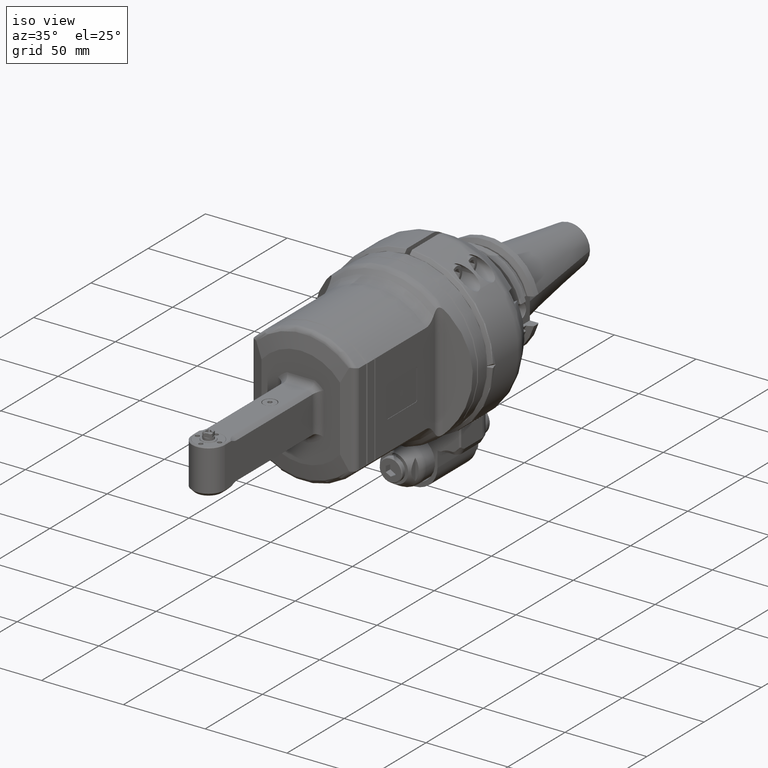
[diagram: clean part render]
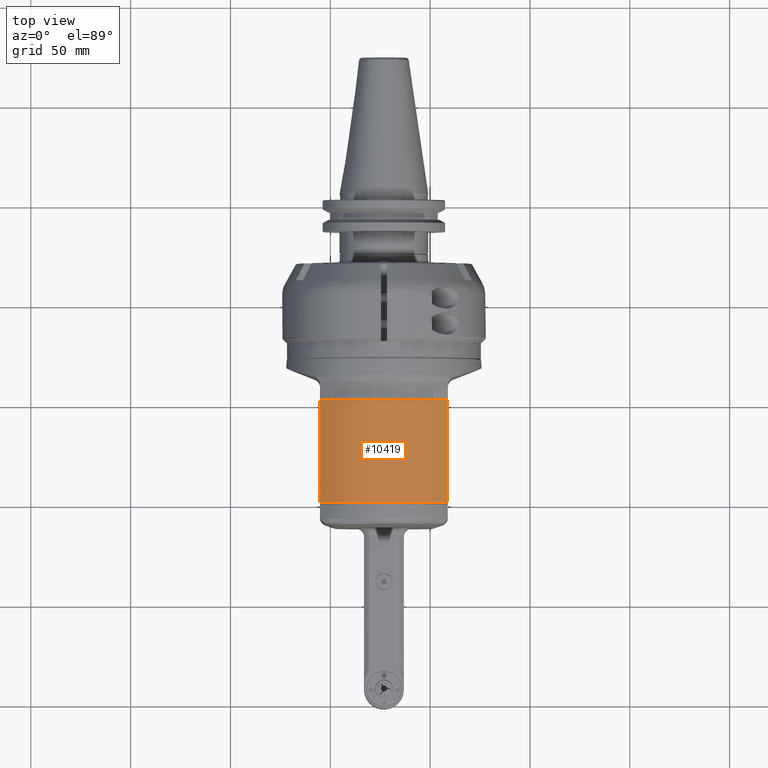
[diagram: tour spotlight — one face highlighted and labeled with its STEP entity id]
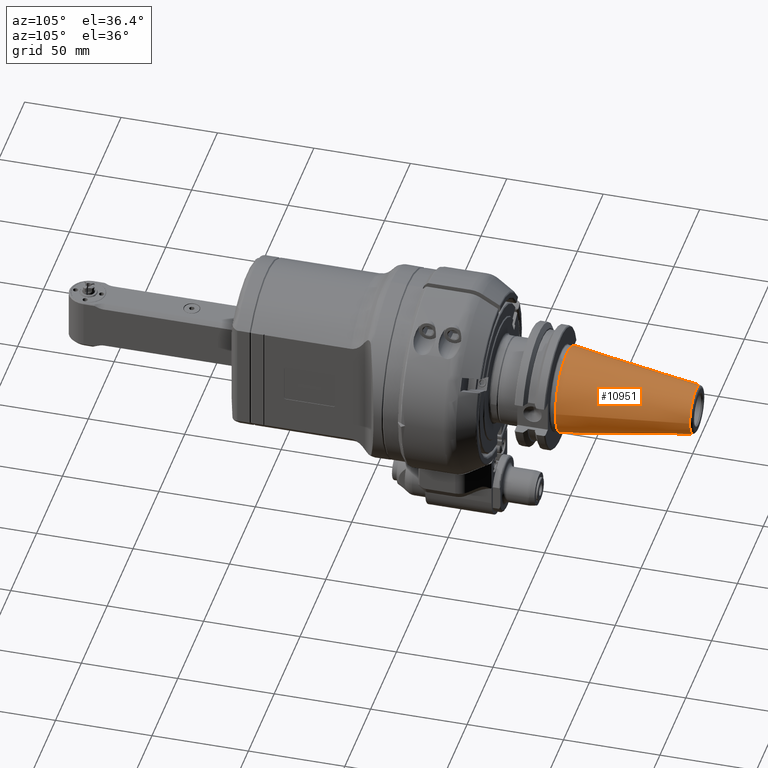
[diagram: tour spotlight — one face highlighted and labeled with its STEP entity id]
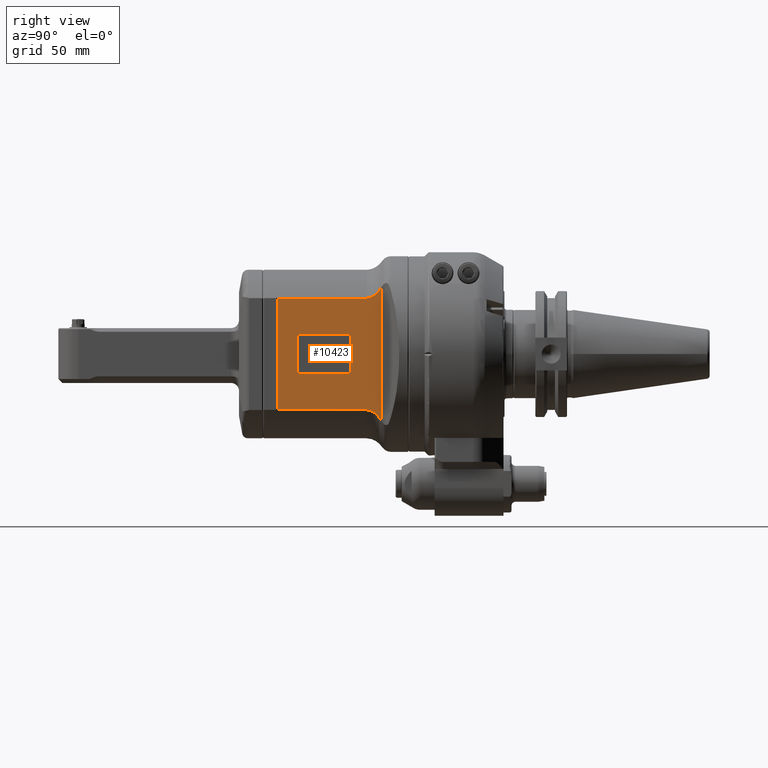
[diagram: tour spotlight — one face highlighted and labeled with its STEP entity id]
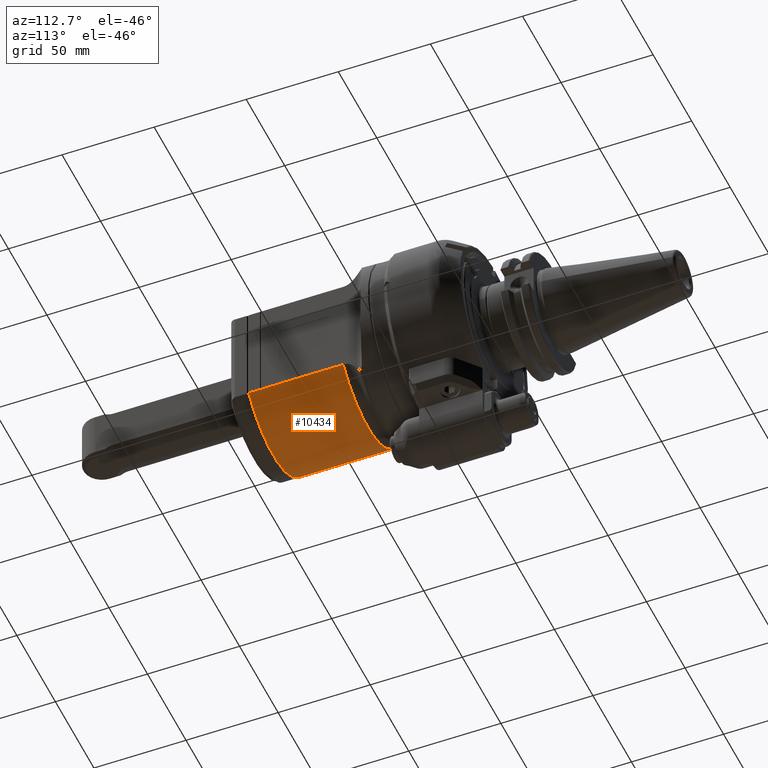
[diagram: tour spotlight — one face highlighted and labeled with its STEP entity id]
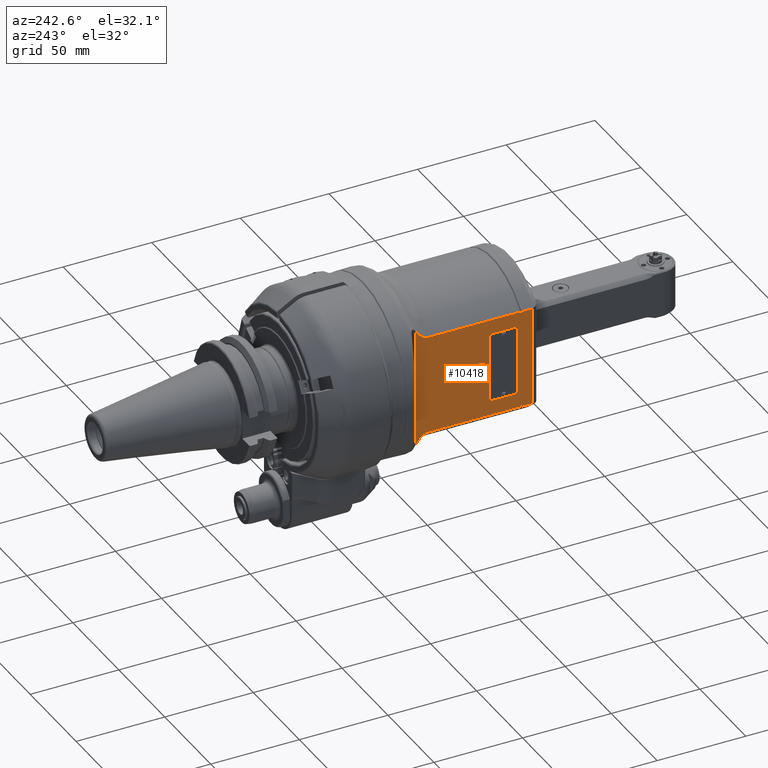
[diagram: tour spotlight — one face highlighted and labeled with its STEP entity id]
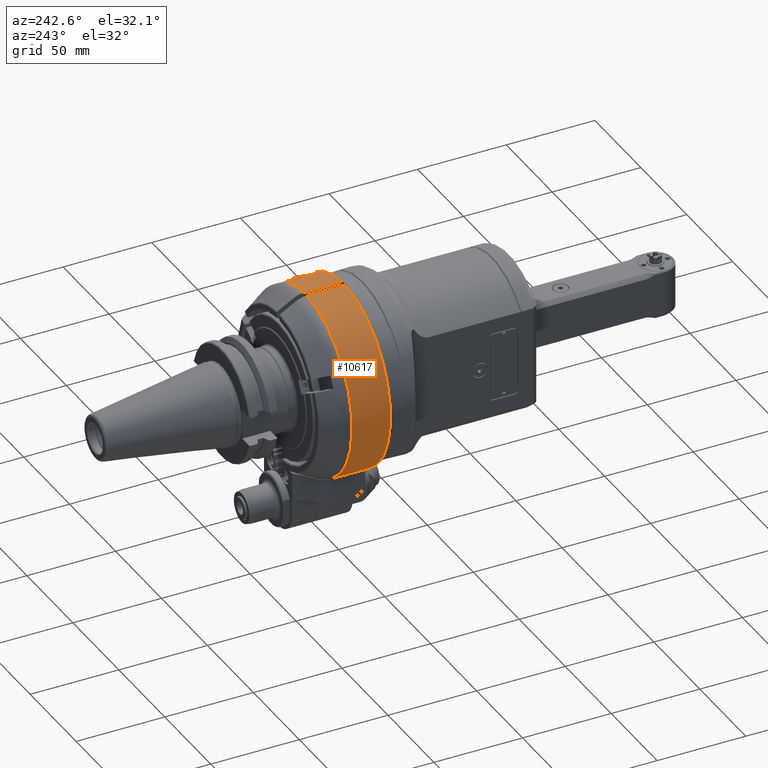
[diagram: tour spotlight — one face highlighted and labeled with its STEP entity id]
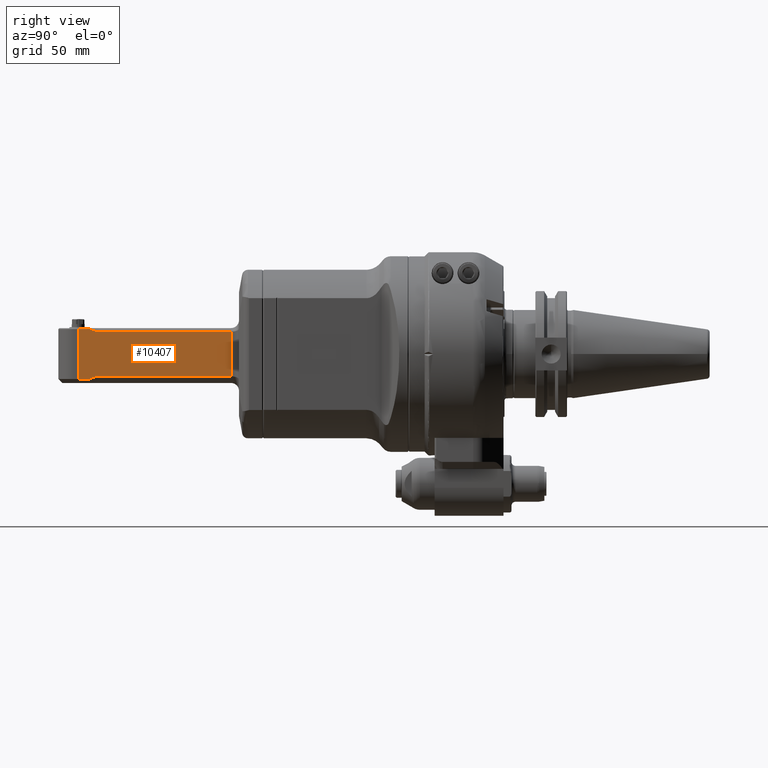
[diagram: tour spotlight — one face highlighted and labeled with its STEP entity id]
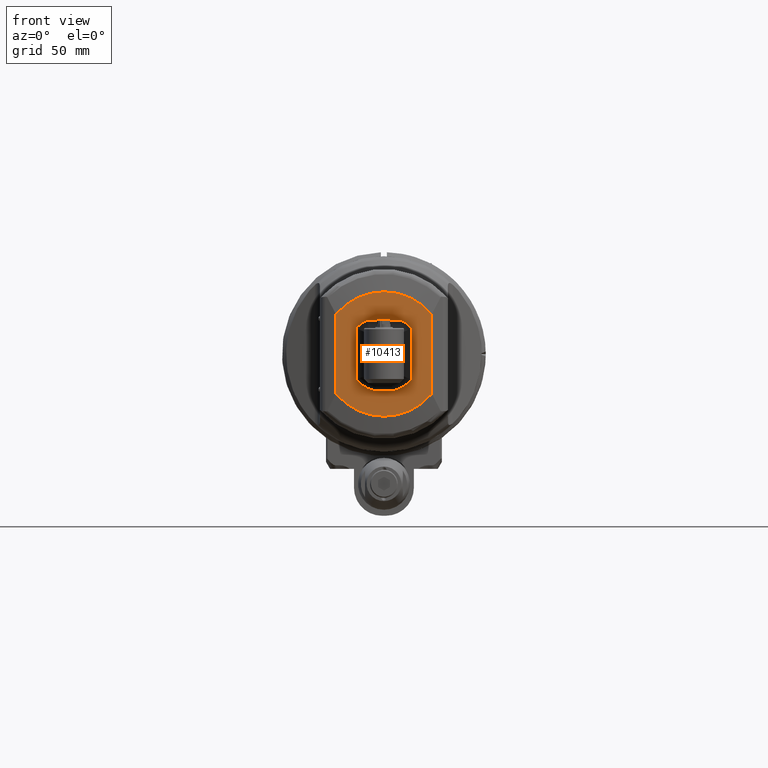
[diagram: tour spotlight — one face highlighted and labeled with its STEP entity id]
A machine part: a face-by-face anatomy tour. The part has 638 B-rep faces; the first image is the clean iso view, then the 8 largest visible faces are spotlighted one at a time (largest first), each with its STEP entity span.

Face 1 — top view, entity #10419. In plain terms, the highlighted cylindrical surface (partial cylindrical patch) has radius 42.5 mm, axis along (0, -1, -0).
Definition (entity closure, byte-faithful):
#598=LINE('',#16104,#1330);
#607=LINE('',#16174,#1339);
#608=LINE('',#16180,#1340);
#1330=VECTOR('',#12569,51.26935071414);
#1339=VECTOR('',#12598,6.2);
#1340=VECTOR('',#12603,44.46935112608);
#2019=CYLINDRICAL_SURFACE('',#11210,42.5);
#2220=FACE_OUTER_BOUND('',#2865,.T.);
#2865=EDGE_LOOP('',(#6941,#6942,#6943,#6944,#6945,#6946,#6947));
#3581=CIRCLE('',#11211,51.8413641375718);
#3582=CIRCLE('',#11212,51.8413641374299);
#3583=CIRCLE('',#11213,42.5);
#3584=CIRCLE('',#11214,42.5);
#4220=VERTEX_POINT('',#16102);
#4221=VERTEX_POINT('',#16103);
#4241=VERTEX_POINT('',#16172);
#4242=VERTEX_POINT('',#16173);
#4243=VERTEX_POINT('',#16175);
#4244=VERTEX_POINT('',#16177);
#4245=VERTEX_POINT('',#16179);
#5277=EDGE_CURVE('',#4220,#4221,#598,.T.);
#5299=EDGE_CURVE('',#4241,#4242,#607,.T.);
#5300=EDGE_CURVE('',#4243,#4242,#3581,.T.);
#5301=EDGE_CURVE('',#4244,#4243,#3582,.T.);
#5302=EDGE_CURVE('',#4244,#4245,#608,.T.);
#5303=EDGE_CURVE('',#4220,#4245,#3583,.T.);
#5304=EDGE_CURVE('',#4241,#4221,#3584,.T.);
#6941=ORIENTED_EDGE('',*,*,#5299,.T.);
#6942=ORIENTED_EDGE('',*,*,#5300,.F.);
#6943=ORIENTED_EDGE('',*,*,#5301,.F.);
#6944=ORIENTED_EDGE('',*,*,#5302,.T.);
#6945=ORIENTED_EDGE('',*,*,#5303,.F.);
#6946=ORIENTED_EDGE('',*,*,#5277,.T.);
#6947=ORIENTED_EDGE('',*,*,#5304,.F.);
#10419=ADVANCED_FACE('',(#2220),#2019,.T.);
#11210=AXIS2_PLACEMENT_3D('',#16171,#12596,#12597);
#11211=AXIS2_PLACEMENT_3D('',#16176,#12599,#12600);
#11212=AXIS2_PLACEMENT_3D('',#16178,#12601,#12602);
#11213=AXIS2_PLACEMENT_3D('',#16181,#12604,#12605);
#11214=AXIS2_PLACEMENT_3D('',#16182,#12606,#12607);
#12569=DIRECTION('',(1.,3.473462649786E-9,-3.035885710973E-9));
#12596=DIRECTION('center_axis',(1.,0.,0.));
#12597=DIRECTION('ref_axis',(0.,-1.,0.));
#12598=DIRECTION('',(-1.,0.,0.));
#12599=DIRECTION('center_axis',(-0.707103671029759,-5.49543835266206E-6,
0.707109891308302));
#12600=DIRECTION('ref_axis',(0.44474449587682,-0.777440364882584,0.444734541539678));
#12601=DIRECTION('center_axis',(0.707103671027798,-5.49544179905175E-6,
0.707109891310263));
#12602=DIRECTION('ref_axis',(-0.438957611121359,-0.783990542192834,0.438947656777908));
#12603=DIRECTION('',(-1.,0.,0.));
#12604=DIRECTION('center_axis',(-1.,0.,0.));
#12605=DIRECTION('ref_axis',(0.,-0.658087824515174,-0.75294117647057));
#12606=DIRECTION('center_axis',(1.,0.,0.));
#12607=DIRECTION('ref_axis',(0.,-0.658087824515174,0.75294117647057));
#16102=CARTESIAN_POINT('',(17.23064887381,-27.96873254189,-32.));
#16103=CARTESIAN_POINT('',(68.4999999587753,-27.9687323282238,-32.0000002221198));
#16104=CARTESIAN_POINT('',(17.23064887381,-27.96873254189,-32.));
#16171=CARTESIAN_POINT('Origin',(22.25229287192,0.,0.));
#16172=CARTESIAN_POINT('',(68.5,-27.96873254189,32.));
#16173=CARTESIAN_POINT('',(62.3,-27.96873254189,32.));
#16174=CARTESIAN_POINT('',(68.5,-27.96873254189,32.));
#16175=CARTESIAN_POINT('',(62.,-28.30830266901,31.7));
#16176=CARTESIAN_POINT('Origin',(39.243838641069,12.3348365092331,8.94435468748747));
#16177=CARTESIAN_POINT('',(61.7,-27.96873254189,32.));
#16178=CARTESIAN_POINT('Origin',(84.7561613590387,12.334836509112,8.94435468770244));
#16179=CARTESIAN_POINT('',(17.23064887392,-27.96873254189,32.));
#16180=CARTESIAN_POINT('',(61.7,-27.96873254189,32.));
#16181=CARTESIAN_POINT('Origin',(17.23064887381,0.,0.));
#16182=CARTESIAN_POINT('Origin',(68.5,0.,0.));

Face 2 — auxiliary view, entity #10951. In plain terms, the highlighted conical surface has half-angle 8.297 deg.
Definition (entity closure, byte-faithful):
#135=CONICAL_SURFACE('',#12245,0.682757161774016,0.144812411498922);
#1209=LINE('',#22025,#1941);
#1941=VECTOR('',#15270,0.682757161774016);
#2752=FACE_OUTER_BOUND('',#3464,.T.);
#3464=EDGE_LOOP('',(#9595,#9596,#9597,#9598,#9599));
#4067=CIRCLE('',#12244,0.875);
#4068=CIRCLE('',#12246,0.490514323548032);
#4069=CIRCLE('',#12247,0.490514323548032);
#5070=VERTEX_POINT('',#22020);
#5071=VERTEX_POINT('',#22024);
#5072=VERTEX_POINT('',#22026);
#6595=EDGE_CURVE('',#5070,#5070,#4067,.T.);
#6597=EDGE_CURVE('',#5070,#5071,#1209,.T.);
#6598=EDGE_CURVE('',#5072,#5071,#4068,.T.);
#6599=EDGE_CURVE('',#5071,#5072,#4069,.T.);
#9595=ORIENTED_EDGE('',*,*,#6595,.F.);
#9596=ORIENTED_EDGE('',*,*,#6597,.T.);
#9597=ORIENTED_EDGE('',*,*,#6598,.F.);
#9598=ORIENTED_EDGE('',*,*,#6599,.F.);
#9599=ORIENTED_EDGE('',*,*,#6597,.F.);
#10951=ADVANCED_FACE('',(#2752),#135,.T.);
#12244=AXIS2_PLACEMENT_3D('',#22021,#15265,#15266);
#12245=AXIS2_PLACEMENT_3D('',#22023,#15268,#15269);
#12246=AXIS2_PLACEMENT_3D('',#22027,#15271,#15272);
#12247=AXIS2_PLACEMENT_3D('',#22028,#15273,#15274);
#15265=DIRECTION('center_axis',(0.,-1.,0.));
#15266=DIRECTION('ref_axis',(1.,0.,0.));
#15268=DIRECTION('center_axis',(0.,-1.,0.));
#15269=DIRECTION('ref_axis',(-1.,0.,0.));
#15270=DIRECTION('',(-0.144306807239621,0.98953299358046,-1.76724869581176E-17));
#15271=DIRECTION('center_axis',(0.,1.,0.));
#15272=DIRECTION('ref_axis',(1.,0.,0.));
#15273=DIRECTION('center_axis',(0.,1.,0.));
#15274=DIRECTION('ref_axis',(1.,0.,0.));
#22020=CARTESIAN_POINT('',(0.874999999999872,2.93307086614177,-1.07156594925378E-16));
#22021=CARTESIAN_POINT('Origin',(0.,2.93307086614173,0.));
#22023=CARTESIAN_POINT('Origin',(0.,4.25130827186614,0.));
#22024=CARTESIAN_POINT('',(0.490514323548032,5.56954567759449,0.));
#22025=CARTESIAN_POINT('',(0.682757161774016,4.25130827186614,8.3613637276148E-17));
#22026=CARTESIAN_POINT('',(-0.490514323548032,5.56954567759449,-6.00706796269026E-17));
#22027=CARTESIAN_POINT('Origin',(0.,5.56954567759449,0.));
#22028=CARTESIAN_POINT('Origin',(0.,5.56954567759449,0.));

Face 3 — right view, entity #10423. In plain terms, the highlighted planar face has unit normal (-1, -0, 0).
Definition (entity closure, byte-faithful):
#165=(
BOUNDED_CURVE()
B_SPLINE_CURVE(2,(#16214,#16215,#16216),.UNSPECIFIED.,.F.,.F.)
B_SPLINE_CURVE_WITH_KNOTS((3,3),(-0.358020136835801,-0.23112245528904),
 .UNSPECIFIED.)
CURVE()
GEOMETRIC_REPRESENTATION_ITEM()
RATIONAL_B_SPLINE_CURVE((1.04410882061903,1.03665734680932,1.02894673665173))
REPRESENTATION_ITEM('')
);
#260=FACE_BOUND('',#2870,.T.);
#350=ELLIPSE('',#11221,174.425179653939,27.352827089509);
#394=B_SPLINE_CURVE_WITH_KNOTS('',3,(#16201,#16202,#16203,#16204,#16205,
#16206,#16207,#16208,#16209,#16210,#16211,#16212),.UNSPECIFIED.,.F.,.F.,
(4,2,2,2,2,4),(3.0712756261057,3.21936466197179,3.36745369783788,3.55263373942636,
3.73781378101483,3.80386724472278),.UNSPECIFIED.);
#395=B_SPLINE_CURVE_WITH_KNOTS('',3,(#16221,#16222,#16223,#16224,#16225,
#16226,#16227,#16228,#16229,#16230,#16231,#16232),.UNSPECIFIED.,.F.,.F.,
(4,2,2,2,2,4),(2.33868393043174,2.40473747119757,2.58991751278882,2.77509755438008,
2.92318659024839,3.0712756261167),.UNSPECIFIED.);
#608=LINE('',#16180,#1340);
#613=LINE('',#16196,#1345);
#614=LINE('',#16199,#1346);
#615=LINE('',#16218,#1347);
#616=LINE('',#16235,#1348);
#617=LINE('',#16239,#1349);
#618=LINE('',#16243,#1350);
#619=LINE('',#16247,#1351);
#1340=VECTOR('',#12603,44.46935112608);
#1345=VECTOR('',#12622,55.93746508379);
#1346=VECTOR('',#12625,44.46935112619);
#1347=VECTOR('',#12626,66.84160300858);
#1348=VECTOR('',#12629,17.5);
#1349=VECTOR('',#12632,24.5);
#1350=VECTOR('',#12635,17.5);
#1351=VECTOR('',#12638,24.5);
#2224=FACE_OUTER_BOUND('',#2869,.T.);
#2869=EDGE_LOOP('',(#6960,#6961,#6962,#6963,#6964,#6965,#6966,#6967));
#2870=EDGE_LOOP('',(#6968,#6969,#6970,#6971,#6972,#6973,#6974,#6975));
#3587=CIRCLE('',#11222,1.);
#3588=CIRCLE('',#11223,1.);
#3589=CIRCLE('',#11224,1.);
#3590=CIRCLE('',#11225,1.);
#4244=VERTEX_POINT('',#16177);
#4245=VERTEX_POINT('',#16179);
#4249=VERTEX_POINT('',#16194);
#4250=VERTEX_POINT('',#16198);
#4251=VERTEX_POINT('',#16200);
#4252=VERTEX_POINT('',#16213);
#4253=VERTEX_POINT('',#16217);
#4254=VERTEX_POINT('',#16219);
#4255=VERTEX_POINT('',#16233);
#4256=VERTEX_POINT('',#16234);
#4257=VERTEX_POINT('',#16236);
#4258=VERTEX_POINT('',#16238);
#4259=VERTEX_POINT('',#16240);
#4260=VERTEX_POINT('',#16242);
#4261=VERTEX_POINT('',#16244);
#4262=VERTEX_POINT('',#16246);
#5302=EDGE_CURVE('',#4244,#4245,#608,.T.);
#5311=EDGE_CURVE('',#4244,#4249,#613,.T.);
#5312=EDGE_CURVE('',#4250,#4249,#614,.T.);
#5313=EDGE_CURVE('',#4250,#4251,#394,.T.);
#5314=EDGE_CURVE('',#4251,#4252,#165,.T.);
#5315=EDGE_CURVE('',#4253,#4252,#615,.T.);
#5316=EDGE_CURVE('',#4254,#4253,#350,.T.);
#5317=EDGE_CURVE('',#4254,#4245,#395,.T.);
#5318=EDGE_CURVE('',#4255,#4256,#616,.T.);
#5319=EDGE_CURVE('',#4255,#4257,#3587,.T.);
#5320=EDGE_CURVE('',#4258,#4257,#617,.T.);
#5321=EDGE_CURVE('',#4258,#4259,#3588,.T.);
#5322=EDGE_CURVE('',#4260,#4259,#618,.T.);
#5323=EDGE_CURVE('',#4260,#4261,#3589,.T.);
#5324=EDGE_CURVE('',#4262,#4261,#619,.T.);
#5325=EDGE_CURVE('',#4262,#4256,#3590,.T.);
#6960=ORIENTED_EDGE('',*,*,#5302,.F.);
#6961=ORIENTED_EDGE('',*,*,#5311,.T.);
#6962=ORIENTED_EDGE('',*,*,#5312,.F.);
#6963=ORIENTED_EDGE('',*,*,#5313,.T.);
#6964=ORIENTED_EDGE('',*,*,#5314,.T.);
#6965=ORIENTED_EDGE('',*,*,#5315,.F.);
#6966=ORIENTED_EDGE('',*,*,#5316,.F.);
#6967=ORIENTED_EDGE('',*,*,#5317,.T.);
#6968=ORIENTED_EDGE('',*,*,#5318,.F.);
#6969=ORIENTED_EDGE('',*,*,#5319,.T.);
#6970=ORIENTED_EDGE('',*,*,#5320,.F.);
#6971=ORIENTED_EDGE('',*,*,#5321,.T.);
#6972=ORIENTED_EDGE('',*,*,#5322,.F.);
#6973=ORIENTED_EDGE('',*,*,#5323,.T.);
#6974=ORIENTED_EDGE('',*,*,#5324,.F.);
#6975=ORIENTED_EDGE('',*,*,#5325,.T.);
#9917=PLANE('',#11220);
#10423=ADVANCED_FACE('',(#2224,#260),#9917,.F.);
#11220=AXIS2_PLACEMENT_3D('',#16197,#12623,#12624);
#11221=AXIS2_PLACEMENT_3D('',#16220,#12627,#12628);
#11222=AXIS2_PLACEMENT_3D('',#16237,#12630,#12631);
#11223=AXIS2_PLACEMENT_3D('',#16241,#12633,#12634);
#11224=AXIS2_PLACEMENT_3D('',#16245,#12636,#12637);
#11225=AXIS2_PLACEMENT_3D('',#16248,#12639,#12640);
#12603=DIRECTION('',(-1.,0.,0.));
#12622=DIRECTION('',(0.,1.,0.));
#12623=DIRECTION('center_axis',(0.,0.,-1.));
#12624=DIRECTION('ref_axis',(1.,0.,0.));
#12625=DIRECTION('',(1.,0.,0.));
#12626=DIRECTION('',(-1.533572553029E-12,1.,3.374146633328E-12));
#12627=DIRECTION('center_axis',(0.000114926432141471,-8.42746413524266E-5,
-0.99999998984485));
#12628=DIRECTION('ref_axis',(0.765593495476735,0.643324644750406,3.377097553929E-5));
#12629=DIRECTION('',(0.,1.,0.));
#12630=DIRECTION('center_axis',(0.,0.,-1.));
#12631=DIRECTION('ref_axis',(1.,-2.48689957516E-14,0.));
#12632=DIRECTION('',(1.,0.,0.));
#12633=DIRECTION('center_axis',(0.,0.,-1.));
#12634=DIRECTION('ref_axis',(0.,-1.,0.));
#12635=DIRECTION('',(0.,-1.,0.));
#12636=DIRECTION('center_axis',(0.,0.,-1.));
#12637=DIRECTION('ref_axis',(-1.,0.,0.));
#12638=DIRECTION('',(-1.,0.,0.));
#12639=DIRECTION('center_axis',(0.,0.,-1.));
#12640=DIRECTION('ref_axis',(0.,1.,0.));
#16177=CARTESIAN_POINT('',(61.7,-27.96873254189,32.));
#16179=CARTESIAN_POINT('',(17.23064887392,-27.96873254189,32.));
#16180=CARTESIAN_POINT('',(61.7,-27.96873254189,32.));
#16194=CARTESIAN_POINT('',(61.7,27.96873254189,32.));
#16196=CARTESIAN_POINT('',(61.7,-27.96873254189,32.));
#16197=CARTESIAN_POINT('Origin',(6.930692048084,-58.8000024,32.));
#16198=CARTESIAN_POINT('',(17.23064887381,27.96873254189,32.));
#16199=CARTESIAN_POINT('',(17.23064887381,27.96873254189,32.));
#16200=CARTESIAN_POINT('',(10.8689325301291,31.8285948729434,32.0000000965071));
#16201=CARTESIAN_POINT('Ctrl Pts',(17.23064887381,27.968732541894,32.));
#16202=CARTESIAN_POINT('Ctrl Pts',(16.7370187542564,27.968732541894,32.));
#16203=CARTESIAN_POINT('Ctrl Pts',(16.2014291398538,28.0351278054541,32.));
#16204=CARTESIAN_POINT('Ctrl Pts',(15.1655978291161,28.3086723916246,32.));
#16205=CARTESIAN_POINT('Ctrl Pts',(14.6650966137489,28.5148380476213,32.));
#16206=CARTESIAN_POINT('Ctrl Pts',(13.6833023503026,29.0346187724486,32.));
#16207=CARTESIAN_POINT('Ctrl Pts',(13.1290095618823,29.419596467791,32.));
#16208=CARTESIAN_POINT('Ctrl Pts',(12.1164800137392,30.3041616581605,32.));
#16209=CARTESIAN_POINT('Ctrl Pts',(11.6572714347099,30.8026361299901,32.));
#16210=CARTESIAN_POINT('Ctrl Pts',(11.137398313886,31.4591771384881,32.));
#16211=CARTESIAN_POINT('Ctrl Pts',(11.0017952301692,31.6403249625651,32.));
#16212=CARTESIAN_POINT('Ctrl Pts',(10.8689325758387,31.8285949052009,32.));
#16213=CARTESIAN_POINT('',(9.73152227524531,33.4208045046687,32.0000006443278));
#16214=CARTESIAN_POINT('Ctrl Pts',(10.868932575835,31.8285949052066,32.));
#16215=CARTESIAN_POINT('Ctrl Pts',(10.3141051314323,32.6148003267519,32.));
#16216=CARTESIAN_POINT('Ctrl Pts',(9.7315227150607,33.4208048225686,32.));
#16217=CARTESIAN_POINT('',(9.73152281962003,-33.4208027084784,32.0000011272698));
#16218=CARTESIAN_POINT('',(9.731521981753,-33.42080150517,32.00000048242));
#16219=CARTESIAN_POINT('',(10.8689325398985,-31.8285958669181,31.9999990940273));
#16220=CARTESIAN_POINT('Origin',(-112.862896293888,-117.515653407322,31.9929991737686));
#16221=CARTESIAN_POINT('Ctrl Pts',(10.8689321108335,-31.8285955641257,32.));
#16222=CARTESIAN_POINT('Ctrl Pts',(11.0017949138358,-31.6403253852738,32.));
#16223=CARTESIAN_POINT('Ctrl Pts',(11.1373981544336,-31.4591773398585,32.));
#16224=CARTESIAN_POINT('Ctrl Pts',(11.6572714347099,-30.8026361299901,32.));
#16225=CARTESIAN_POINT('Ctrl Pts',(12.1164800137392,-30.3041616581605,32.));
#16226=CARTESIAN_POINT('Ctrl Pts',(13.1290095618823,-29.419596467791,32.));
#16227=CARTESIAN_POINT('Ctrl Pts',(13.6833023503026,-29.0346187724486,32.));
#16228=CARTESIAN_POINT('Ctrl Pts',(14.6650966137489,-28.5148380476213,32.));
#16229=CARTESIAN_POINT('Ctrl Pts',(15.1655978291161,-28.3086723916246,32.));
#16230=CARTESIAN_POINT('Ctrl Pts',(16.2014291398538,-28.0351278054541,32.));
#16231=CARTESIAN_POINT('Ctrl Pts',(16.7370187542564,-27.968732541894,32.));
#16232=CARTESIAN_POINT('Ctrl Pts',(17.23064887381,-27.968732541894,32.));
#16233=CARTESIAN_POINT('',(51.7,-8.75,32.));
#16234=CARTESIAN_POINT('',(51.7,8.75,32.));
#16235=CARTESIAN_POINT('',(51.7,-8.75,32.));
#16236=CARTESIAN_POINT('',(50.7,-9.75,32.));
#16237=CARTESIAN_POINT('Origin',(50.7,-8.75,32.));
#16238=CARTESIAN_POINT('',(26.2,-9.75,32.));
#16239=CARTESIAN_POINT('',(26.2,-9.75,32.));
#16240=CARTESIAN_POINT('',(25.2,-8.75,32.));
#16241=CARTESIAN_POINT('Origin',(26.2,-8.75,32.));
#16242=CARTESIAN_POINT('',(25.2,8.75,32.));
#16243=CARTESIAN_POINT('',(25.2,8.75,32.));
#16244=CARTESIAN_POINT('',(26.2,9.75,32.));
#16245=CARTESIAN_POINT('Origin',(26.2,8.75,32.));
#16246=CARTESIAN_POINT('',(50.7,9.75,32.));
#16247=CARTESIAN_POINT('',(50.7,9.75,32.));
#16248=CARTESIAN_POINT('Origin',(50.7,8.75,32.));

Face 4 — auxiliary view, entity #10434. In plain terms, the highlighted cylindrical surface (partial cylindrical patch) has radius 42.5 mm, axis along (0, -1, -0).
Definition (entity closure, byte-faithful):
#600=LINE('',#16142,#1332);
#610=LINE('',#16187,#1342);
#614=LINE('',#16199,#1346);
#1332=VECTOR('',#12571,51.26935071414);
#1342=VECTOR('',#12611,6.2);
#1346=VECTOR('',#12625,44.46935112619);
#2022=CYLINDRICAL_SURFACE('',#11249,42.5);
#2235=FACE_OUTER_BOUND('',#2881,.T.);
#2881=EDGE_LOOP('',(#7032,#7033,#7034,#7035,#7036,#7037,#7038));
#3585=CIRCLE('',#11217,51.8413641368644);
#3586=CIRCLE('',#11219,51.8413641367197);
#3601=CIRCLE('',#11248,42.5);
#3602=CIRCLE('',#11250,42.5);
#4226=VERTEX_POINT('',#16128);
#4227=VERTEX_POINT('',#16141);
#4246=VERTEX_POINT('',#16184);
#4247=VERTEX_POINT('',#16186);
#4248=VERTEX_POINT('',#16190);
#4249=VERTEX_POINT('',#16194);
#4250=VERTEX_POINT('',#16198);
#5283=EDGE_CURVE('',#4227,#4226,#600,.T.);
#5306=EDGE_CURVE('',#4247,#4246,#610,.T.);
#5308=EDGE_CURVE('',#4247,#4248,#3585,.T.);
#5310=EDGE_CURVE('',#4248,#4249,#3586,.T.);
#5312=EDGE_CURVE('',#4250,#4249,#614,.T.);
#5353=EDGE_CURVE('',#4250,#4226,#3601,.T.);
#5354=EDGE_CURVE('',#4227,#4246,#3602,.T.);
#7032=ORIENTED_EDGE('',*,*,#5306,.T.);
#7033=ORIENTED_EDGE('',*,*,#5354,.F.);
#7034=ORIENTED_EDGE('',*,*,#5283,.T.);
#7035=ORIENTED_EDGE('',*,*,#5353,.F.);
#7036=ORIENTED_EDGE('',*,*,#5312,.T.);
#7037=ORIENTED_EDGE('',*,*,#5310,.F.);
#7038=ORIENTED_EDGE('',*,*,#5308,.F.);
#10434=ADVANCED_FACE('',(#2235),#2022,.T.);
#11217=AXIS2_PLACEMENT_3D('',#16191,#12615,#12616);
#11219=AXIS2_PLACEMENT_3D('',#16195,#12620,#12621);
#11248=AXIS2_PLACEMENT_3D('',#16418,#12688,#12689);
#11249=AXIS2_PLACEMENT_3D('',#16419,#12690,#12691);
#11250=AXIS2_PLACEMENT_3D('',#16420,#12692,#12693);
#12571=DIRECTION('',(-1.,3.473462719081E-9,3.035885849564E-9));
#12611=DIRECTION('',(1.,0.,0.));
#12615=DIRECTION('center_axis',(-0.707103671023875,5.49544867779151E-6,
0.707109891314186));
#12616=DIRECTION('ref_axis',(0.438957611127409,0.783990542193052,0.438947656771469));
#12620=DIRECTION('center_axis',(0.707103671021956,5.49545211017132E-6,0.707109891316105));
#12621=DIRECTION('ref_axis',(-0.444744495889397,0.77744036488246,0.444734541527318));
#12625=DIRECTION('',(1.,0.,0.));
#12688=DIRECTION('center_axis',(-1.,0.,0.));
#12689=DIRECTION('ref_axis',(0.,0.658087824515174,0.75294117647057));
#12690=DIRECTION('center_axis',(1.,0.,0.));
#12691=DIRECTION('ref_axis',(0.,1.,-3.61237605350076E-9));
#12692=DIRECTION('center_axis',(1.,0.,0.));
#12693=DIRECTION('ref_axis',(0.,0.658087824515174,-0.75294117647057));
#16128=CARTESIAN_POINT('',(17.23064887381,27.96873254189,-32.));
#16141=CARTESIAN_POINT('',(68.499999958775,27.9687323282249,-32.0000002221204));
#16142=CARTESIAN_POINT('',(68.49999958795,27.96873236381,-32.00000015565));
#16184=CARTESIAN_POINT('',(68.5,27.96873254189,32.));
#16186=CARTESIAN_POINT('',(62.3,27.96873254189,32.));
#16187=CARTESIAN_POINT('',(62.3,27.96873254189,32.));
#16190=CARTESIAN_POINT('',(62.,28.30830266901,31.7));
#16191=CARTESIAN_POINT('Origin',(39.2438386408959,-12.33483650868,8.94435468828448));
#16194=CARTESIAN_POINT('',(61.7,27.96873254189,32.));
#16195=CARTESIAN_POINT('Origin',(84.756161359204,-12.3348365085641,8.94435468850721));
#16198=CARTESIAN_POINT('',(17.23064887381,27.96873254189,32.));
#16199=CARTESIAN_POINT('',(17.23064887381,27.96873254189,32.));
#16418=CARTESIAN_POINT('Origin',(17.23064887381,0.,0.));
#16419=CARTESIAN_POINT('Origin',(22.25229287192,0.,0.));
#16420=CARTESIAN_POINT('Origin',(68.5,0.,0.));

Face 5 — auxiliary view, entity #10418. In plain terms, the highlighted planar face has unit normal (1, 0, -0).
Definition (entity closure, byte-faithful):
#163=(
BOUNDED_CURVE()
B_SPLINE_CURVE(2,(#16119,#16120,#16121),.UNSPECIFIED.,.F.,.F.)
B_SPLINE_CURVE_WITH_KNOTS((3,3),(-0.358020136756477,-0.231122455287355),
 .UNSPECIFIED.)
CURVE()
GEOMETRIC_REPRESENTATION_ITEM()
RATIONAL_B_SPLINE_CURVE((1.04410882060971,1.0366573468044,1.02894673665153))
REPRESENTATION_ITEM('')
);
#164=(
BOUNDED_CURVE()
B_SPLINE_CURVE(2,(#16125,#16126,#16127),.UNSPECIFIED.,.F.,.F.)
B_SPLINE_CURVE_WITH_KNOTS((3,3),(-7.78281144324682,-7.65591376175528),
 .UNSPECIFIED.)
CURVE()
GEOMETRIC_REPRESENTATION_ITEM()
RATIONAL_B_SPLINE_CURVE((1.02894673665151,1.03665734680574,1.04410882061233))
REPRESENTATION_ITEM('')
);
#258=FACE_BOUND('',#2863,.T.);
#259=FACE_BOUND('',#2864,.T.);
#392=B_SPLINE_CURVE_WITH_KNOTS('',3,(#16106,#16107,#16108,#16109,#16110,
#16111,#16112,#16113,#16114,#16115,#16116,#16117),.UNSPECIFIED.,.F.,.F.,
(4,2,2,2,2,4),(-3.80386724483675,-3.73781378101483,-3.55263373942636,-3.36745369783788,
-3.21936466197179,-3.0712756261057),.UNSPECIFIED.);
#393=B_SPLINE_CURVE_WITH_KNOTS('',3,(#16129,#16130,#16131,#16132,#16133,
#16134,#16135,#16136,#16137,#16138,#16139,#16140),.UNSPECIFIED.,.F.,.F.,
(4,2,2,2,2,4),(-3.0712756261057,-2.92318659023961,-2.77509755437353,-2.58991751278505,
-2.40473747119658,-2.3386840074071),.UNSPECIFIED.);
#597=LINE('',#16077,#1329);
#598=LINE('',#16104,#1330);
#599=LINE('',#16123,#1331);
#600=LINE('',#16142,#1332);
#601=LINE('',#16147,#1333);
#602=LINE('',#16149,#1334);
#603=LINE('',#16157,#1335);
#604=LINE('',#16161,#1336);
#605=LINE('',#16165,#1337);
#606=LINE('',#16169,#1338);
#1329=VECTOR('',#12566,55.93746508379);
#1330=VECTOR('',#12569,51.26935071414);
#1331=VECTOR('',#12570,66.8416030065);
#1332=VECTOR('',#12571,51.26935071414);
#1333=VECTOR('',#12576,5.79108067422501);
#1334=VECTOR('',#12577,5.79108067422501);
#1335=VECTOR('',#12584,35.5);
#1336=VECTOR('',#12587,12.);
#1337=VECTOR('',#12590,35.5);
#1338=VECTOR('',#12593,12.);
#2219=FACE_OUTER_BOUND('',#2862,.T.);
#2862=EDGE_LOOP('',(#6918,#6919,#6920,#6921,#6922,#6923,#6924,#6925,#6926,
#6927,#6928,#6929,#6930,#6931));
#2863=EDGE_LOOP('',(#6932));
#2864=EDGE_LOOP('',(#6933,#6934,#6935,#6936,#6937,#6938,#6939,#6940));
#3572=CIRCLE('',#11201,125.457615877883);
#3573=CIRCLE('',#11202,125.457615683286);
#3574=CIRCLE('',#11203,125.457615844418);
#3575=CIRCLE('',#11204,125.457615773341);
#3576=CIRCLE('',#11205,4.25);
#3577=CIRCLE('',#11206,2.);
#3578=CIRCLE('',#11207,2.);
#3579=CIRCLE('',#11208,2.);
#3580=CIRCLE('',#11209,2.);
#4217=VERTEX_POINT('',#16075);
#4218=VERTEX_POINT('',#16076);
#4220=VERTEX_POINT('',#16102);
#4221=VERTEX_POINT('',#16103);
#4222=VERTEX_POINT('',#16105);
#4223=VERTEX_POINT('',#16118);
#4224=VERTEX_POINT('',#16122);
#4225=VERTEX_POINT('',#16124);
#4226=VERTEX_POINT('',#16128);
#4227=VERTEX_POINT('',#16141);
#4228=VERTEX_POINT('',#16143);
#4229=VERTEX_POINT('',#16145);
#4230=VERTEX_POINT('',#16148);
#4231=VERTEX_POINT('',#16150);
#4232=VERTEX_POINT('',#16153);
#4233=VERTEX_POINT('',#16155);
#4234=VERTEX_POINT('',#16156);
#4235=VERTEX_POINT('',#16158);
#4236=VERTEX_POINT('',#16160);
#4237=VERTEX_POINT('',#16162);
#4238=VERTEX_POINT('',#16164);
#4239=VERTEX_POINT('',#16166);
#4240=VERTEX_POINT('',#16168);
#5273=EDGE_CURVE('',#4217,#4218,#597,.T.);
#5277=EDGE_CURVE('',#4220,#4221,#598,.T.);
#5278=EDGE_CURVE('',#4222,#4220,#392,.T.);
#5279=EDGE_CURVE('',#4222,#4223,#163,.T.);
#5280=EDGE_CURVE('',#4224,#4223,#599,.T.);
#5281=EDGE_CURVE('',#4224,#4225,#164,.T.);
#5282=EDGE_CURVE('',#4226,#4225,#393,.T.);
#5283=EDGE_CURVE('',#4227,#4226,#600,.T.);
#5284=EDGE_CURVE('',#4227,#4228,#3572,.T.);
#5285=EDGE_CURVE('',#4228,#4229,#3573,.T.);
#5286=EDGE_CURVE('',#4218,#4229,#601,.T.);
#5287=EDGE_CURVE('',#4230,#4217,#602,.T.);
#5288=EDGE_CURVE('',#4230,#4231,#3574,.T.);
#5289=EDGE_CURVE('',#4231,#4221,#3575,.T.);
#5290=EDGE_CURVE('',#4232,#4232,#3576,.T.);
#5291=EDGE_CURVE('',#4233,#4234,#603,.T.);
#5292=EDGE_CURVE('',#4234,#4235,#3577,.T.);
#5293=EDGE_CURVE('',#4235,#4236,#604,.T.);
#5294=EDGE_CURVE('',#4236,#4237,#3578,.T.);
#5295=EDGE_CURVE('',#4237,#4238,#605,.T.);
#5296=EDGE_CURVE('',#4238,#4239,#3579,.T.);
#5297=EDGE_CURVE('',#4239,#4240,#606,.T.);
#5298=EDGE_CURVE('',#4240,#4233,#3580,.T.);
#6918=ORIENTED_EDGE('',*,*,#5277,.F.);
#6919=ORIENTED_EDGE('',*,*,#5278,.F.);
#6920=ORIENTED_EDGE('',*,*,#5279,.T.);
#6921=ORIENTED_EDGE('',*,*,#5280,.F.);
#6922=ORIENTED_EDGE('',*,*,#5281,.T.);
#6923=ORIENTED_EDGE('',*,*,#5282,.F.);
#6924=ORIENTED_EDGE('',*,*,#5283,.F.);
#6925=ORIENTED_EDGE('',*,*,#5284,.T.);
#6926=ORIENTED_EDGE('',*,*,#5285,.T.);
#6927=ORIENTED_EDGE('',*,*,#5286,.F.);
#6928=ORIENTED_EDGE('',*,*,#5273,.F.);
#6929=ORIENTED_EDGE('',*,*,#5287,.F.);
#6930=ORIENTED_EDGE('',*,*,#5288,.T.);
#6931=ORIENTED_EDGE('',*,*,#5289,.T.);
#6932=ORIENTED_EDGE('',*,*,#5290,.T.);
#6933=ORIENTED_EDGE('',*,*,#5291,.T.);
#6934=ORIENTED_EDGE('',*,*,#5292,.T.);
#6935=ORIENTED_EDGE('',*,*,#5293,.T.);
#6936=ORIENTED_EDGE('',*,*,#5294,.T.);
#6937=ORIENTED_EDGE('',*,*,#5295,.T.);
#6938=ORIENTED_EDGE('',*,*,#5296,.T.);
#6939=ORIENTED_EDGE('',*,*,#5297,.T.);
#6940=ORIENTED_EDGE('',*,*,#5298,.T.);
#9913=PLANE('',#11200);
#10418=ADVANCED_FACE('',(#2219,#258,#259),#9913,.F.);
#11200=AXIS2_PLACEMENT_3D('',#16101,#12567,#12568);
#11201=AXIS2_PLACEMENT_3D('',#16144,#12572,#12573);
#11202=AXIS2_PLACEMENT_3D('',#16146,#12574,#12575);
#11203=AXIS2_PLACEMENT_3D('',#16151,#12578,#12579);
#11204=AXIS2_PLACEMENT_3D('',#16152,#12580,#12581);
#11205=AXIS2_PLACEMENT_3D('',#16154,#12582,#12583);
#11206=AXIS2_PLACEMENT_3D('',#16159,#12585,#12586);
#11207=AXIS2_PLACEMENT_3D('',#16163,#12588,#12589);
#11208=AXIS2_PLACEMENT_3D('',#16167,#12591,#12592);
#11209=AXIS2_PLACEMENT_3D('',#16170,#12594,#12595);
#12566=DIRECTION('',(0.,1.,0.));
#12567=DIRECTION('center_axis',(0.,0.,1.));
#12568=DIRECTION('ref_axis',(1.,0.,0.));
#12569=DIRECTION('',(1.,3.473462649786E-9,-3.035885710973E-9));
#12570=DIRECTION('',(4.41420997931E-13,-1.,1.593473993735E-13));
#12571=DIRECTION('',(-1.,3.473462719081E-9,3.035885849564E-9));
#12572=DIRECTION('center_axis',(-0.000101433758070783,-6.72495559794746E-5,
-0.999999992594345));
#12573=DIRECTION('ref_axis',(0.839311775708216,0.543650373261988,-0.000121694794714337));
#12574=DIRECTION('center_axis',(0.000101431716550913,-6.72482230361314E-5,
-0.999999992594642));
#12575=DIRECTION('ref_axis',(-0.835326366002053,0.549754351916615,-0.000121698591357801));
#12576=DIRECTION('',(-0.999999999999999,-3.075111643552E-8,-2.687717631739E-8));
#12577=DIRECTION('',(0.999999999999999,-3.075112809165E-8,2.687718490611E-8));
#12578=DIRECTION('center_axis',(0.000101433409963309,6.72493286931444E-5,
-0.999999992594396));
#12579=DIRECTION('ref_axis',(-0.839311775708652,-0.543650373261407,-0.000121694378979329));
#12580=DIRECTION('center_axis',(-0.000101432662574599,6.72488407139107E-5,
-0.999999992594504));
#12581=DIRECTION('ref_axis',(0.835326366003244,-0.549754351914555,-0.000121699721167393));
#12582=DIRECTION('center_axis',(0.,0.,1.));
#12583=DIRECTION('ref_axis',(-1.,0.,0.));
#12584=DIRECTION('',(0.,-1.,0.));
#12585=DIRECTION('center_axis',(0.,0.,1.));
#12586=DIRECTION('ref_axis',(-1.,0.,0.));
#12587=DIRECTION('',(1.,0.,0.));
#12588=DIRECTION('center_axis',(0.,0.,1.));
#12589=DIRECTION('ref_axis',(0.,-1.,0.));
#12590=DIRECTION('',(0.,1.,0.));
#12591=DIRECTION('center_axis',(0.,0.,1.));
#12592=DIRECTION('ref_axis',(1.,0.,0.));
#12593=DIRECTION('',(-1.,0.,0.));
#12594=DIRECTION('center_axis',(0.,0.,1.));
#12595=DIRECTION('ref_axis',(0.,1.,0.));
#16075=CARTESIAN_POINT('',(75.29108108628,-27.96873254189,-32.));
#16076=CARTESIAN_POINT('',(75.29108108628,27.96873254189,-32.));
#16077=CARTESIAN_POINT('',(75.29108108628,-27.96873254189,-32.));
#16101=CARTESIAN_POINT('Origin',(18.93069204808,58.8000024,-32.));
#16102=CARTESIAN_POINT('',(17.23064887381,-27.96873254189,-32.));
#16103=CARTESIAN_POINT('',(68.4999999587753,-27.9687323282238,-32.0000002221198));
#16104=CARTESIAN_POINT('',(17.23064887381,-27.96873254189,-32.));
#16105=CARTESIAN_POINT('',(10.8689325295699,-31.8285948740087,-32.0000000962357));
#16106=CARTESIAN_POINT('Ctrl Pts',(10.868932575151,-31.8285949061754,-32.));
#16107=CARTESIAN_POINT('Ctrl Pts',(11.0017952297014,-31.6403249631903,-32.));
#16108=CARTESIAN_POINT('Ctrl Pts',(11.1373983136502,-31.4591771387859,-32.));
#16109=CARTESIAN_POINT('Ctrl Pts',(11.6572714347099,-30.8026361299901,-32.));
#16110=CARTESIAN_POINT('Ctrl Pts',(12.1164800137392,-30.3041616581605,-32.));
#16111=CARTESIAN_POINT('Ctrl Pts',(13.1290095618823,-29.419596467791,-32.));
#16112=CARTESIAN_POINT('Ctrl Pts',(13.6833023503026,-29.0346187724486,-32.));
#16113=CARTESIAN_POINT('Ctrl Pts',(14.6650966137489,-28.5148380476213,-32.));
#16114=CARTESIAN_POINT('Ctrl Pts',(15.1655978291161,-28.3086723916246,-32.));
#16115=CARTESIAN_POINT('Ctrl Pts',(16.2014291398538,-28.0351278054541,-32.));
#16116=CARTESIAN_POINT('Ctrl Pts',(16.7370187542564,-27.968732541894,-32.));
#16117=CARTESIAN_POINT('Ctrl Pts',(17.23064887381,-27.968732541894,-32.));
#16118=CARTESIAN_POINT('',(9.73152227520835,-33.4208045046726,-32.0000006443608));
#16119=CARTESIAN_POINT('Ctrl Pts',(10.8689325751473,-31.8285949061811,-32.));
#16120=CARTESIAN_POINT('Ctrl Pts',(10.3141051310644,-32.6148003272611,-32.));
#16121=CARTESIAN_POINT('Ctrl Pts',(9.73152271504615,-33.4208048225888,-32.));
#16122=CARTESIAN_POINT('',(9.73152227519663,33.4208045046616,-32.0000006443736));
#16123=CARTESIAN_POINT('',(9.73152198157,33.42080150323,-32.00000048268));
#16124=CARTESIAN_POINT('',(10.868932529729,31.8285948737055,-32.0000000963129));
#16125=CARTESIAN_POINT('Ctrl Pts',(9.73152271504505,33.4208048225903,-32.));
#16126=CARTESIAN_POINT('Ctrl Pts',(10.3141051311655,32.6148003271213,-32.));
#16127=CARTESIAN_POINT('Ctrl Pts',(10.8689325753408,31.8285949059068,-32.));
#16128=CARTESIAN_POINT('',(17.23064887381,27.96873254189,-32.));
#16129=CARTESIAN_POINT('Ctrl Pts',(17.23064887381,27.968732541894,-32.));
#16130=CARTESIAN_POINT('Ctrl Pts',(16.7370187542564,27.968732541894,-32.));
#16131=CARTESIAN_POINT('Ctrl Pts',(16.2014291398538,28.0351278054541,-32.));
#16132=CARTESIAN_POINT('Ctrl Pts',(15.1655978291161,28.3086723916246,-32.));
#16133=CARTESIAN_POINT('Ctrl Pts',(14.6650966137489,28.5148380476213,-32.));
#16134=CARTESIAN_POINT('Ctrl Pts',(13.6833023503026,29.0346187724486,-32.));
#16135=CARTESIAN_POINT('Ctrl Pts',(13.1290095618823,29.419596467791,-32.));
#16136=CARTESIAN_POINT('Ctrl Pts',(12.1164800137392,30.3041616581605,-32.));
#16137=CARTESIAN_POINT('Ctrl Pts',(11.6572714347099,30.8026361299901,-32.));
#16138=CARTESIAN_POINT('Ctrl Pts',(11.1373983137173,31.4591771387011,-32.));
#16139=CARTESIAN_POINT('Ctrl Pts',(11.0017952298345,31.6403249630123,-32.));
#16140=CARTESIAN_POINT('Ctrl Pts',(10.8689325753467,31.828594905898,-32.));
#16141=CARTESIAN_POINT('',(68.499999958775,27.9687323282249,-32.0000002221204));
#16142=CARTESIAN_POINT('',(68.49999958795,27.96873236381,-32.00000015565));
#16143=CARTESIAN_POINT('',(69.,27.202941575184,-31.9999995276666));
#16144=CARTESIAN_POINT('Origin',(-36.2980545649426,-41.0021378099356,-31.9847319897655));
#16145=CARTESIAN_POINT('',(69.5000000412247,27.9687323282238,-32.0000002221198));
#16146=CARTESIAN_POINT('Origin',(174.298054402027,-41.0021377035762,-31.9847322956708));
#16147=CARTESIAN_POINT('',(75.29108108628,27.96873254189,-32.));
#16148=CARTESIAN_POINT('',(69.5000000412251,-27.9687323282249,-32.0000002221204));
#16149=CARTESIAN_POINT('',(69.50000041205,-27.96873236381,-32.00000015565));
#16150=CARTESIAN_POINT('',(69.0000000000001,-27.2029415751841,-31.9999995276666));
#16151=CARTESIAN_POINT('Origin',(174.29805453691,41.0021377916699,-31.9847320419267));
#16152=CARTESIAN_POINT('Origin',(-36.2980544774016,41.0021377528261,-31.9847321539166));
#16153=CARTESIAN_POINT('',(50.25,0.,-32.));
#16154=CARTESIAN_POINT('Origin',(46.,0.,-32.));
#16155=CARTESIAN_POINT('',(51.25,17.75,-32.));
#16156=CARTESIAN_POINT('',(51.25,-17.75,-32.));
#16157=CARTESIAN_POINT('',(51.25,17.75,-32.));
#16158=CARTESIAN_POINT('',(53.25,-19.75,-32.));
#16159=CARTESIAN_POINT('Origin',(53.25,-17.75,-32.));
#16160=CARTESIAN_POINT('',(65.25,-19.75,-32.));
#16161=CARTESIAN_POINT('',(53.25,-19.75,-32.));
#16162=CARTESIAN_POINT('',(67.25,-17.75,-32.));
#16163=CARTESIAN_POINT('Origin',(65.25,-17.75,-32.));
#16164=CARTESIAN_POINT('',(67.25,17.75,-32.));
#16165=CARTESIAN_POINT('',(67.25,-17.75,-32.));
#16166=CARTESIAN_POINT('',(65.25,19.75,-32.));
#16167=CARTESIAN_POINT('Origin',(65.25,17.75,-32.));
#16168=CARTESIAN_POINT('',(53.25,19.75,-32.));
#16169=CARTESIAN_POINT('',(65.25,19.75,-32.));
#16170=CARTESIAN_POINT('Origin',(53.25,17.75,-32.));

Face 6 — auxiliary view, entity #10617. In plain terms, the highlighted cylindrical surface (partial cylindrical patch) has radius 51 mm, axis along (0, -1, 0).
Definition (entity closure, byte-faithful):
#283=FACE_BOUND('',#3087,.T.);
#353=ELLIPSE('',#11608,5.67912532921425,2.00787401574803);
#354=ELLIPSE('',#11609,5.67912532921425,2.00787401574803);
#435=B_SPLINE_CURVE_WITH_KNOTS('',3,(#17678,#17679,#17680,#17681,#17682,
#17683),.UNSPECIFIED.,.F.,.F.,(4,2,4),(-0.220144328878827,-0.201175489980687,
0.),.UNSPECIFIED.);
#436=B_SPLINE_CURVE_WITH_KNOTS('',3,(#17685,#17686,#17687,#17688,#17689,
#17690,#17691,#17692,#17693,#17694,#17695,#17696,#17697,#17698,#17699,#17700,
#17701,#17702,#17703,#17704,#17705,#17706,#17707,#17708,#17709,#17710),
 .UNSPECIFIED.,.F.,.F.,(4,2,2,2,2,2,2,2,2,2,2,2,4),(0.,0.201175489980687,
0.402350979961374,0.726790310303929,1.05122964064648,1.44743687444551,1.84364410824453,
2.06341028648597,2.1732933756067,2.28317646472742,2.39305955384814,2.50294264296886,
2.52975105249028),.UNSPECIFIED.);
#437=B_SPLINE_CURVE_WITH_KNOTS('',3,(#17732,#17733,#17734,#17735,#17736,
#17737,#17738,#17739,#17740,#17741,#17742,#17743,#17744,#17745,#17746,#17747,
#17748,#17749,#17750,#17751,#17752,#17753,#17754),.UNSPECIFIED.,.F.,.F.,
(4,2,2,2,2,3,2,2,2,2,4),(-1.23194682408093,-0.835739590281912,-0.439532356482891,
-0.219766178241446,-0.109883089120723,0.,0.0949450193758139,0.189890038751628,
0.520032016318137,0.865269466584616,1.2105069168511),.UNSPECIFIED.);
#438=B_SPLINE_CURVE_WITH_KNOTS('',3,(#17755,#17756,#17757,#17758,#17759,
#17760,#17761,#17762,#17763,#17764,#17765,#17766,#17767,#17768,#17769,#17770,
#17771,#17772),.UNSPECIFIED.,.F.,.F.,(4,2,2,2,2,2,2,2,4),(1.2105069168511,
1.53494624719365,1.8593855775362,2.06056106751689,2.26173655749758,2.46291204747827,
2.66408753745895,2.98852686780151,3.31296619814406),.UNSPECIFIED.);
#815=LINE('',#17672,#1547);
#816=LINE('',#17674,#1548);
#817=LINE('',#17714,#1549);
#818=LINE('',#17724,#1550);
#819=LINE('',#17728,#1551);
#820=LINE('',#17729,#1552);
#1547=VECTOR('',#13594,0.024994454375189);
#1548=VECTOR('',#13595,0.729346255774409);
#1549=VECTOR('',#13600,0.856144431699606);
#1550=VECTOR('',#13609,0.85614422250315);
#1551=VECTOR('',#13612,0.729346255774409);
#1552=VECTOR('',#13613,0.024994454375189);
#2074=CYLINDRICAL_SURFACE('',#11602,2.00787401574803);
#2418=FACE_OUTER_BOUND('',#3086,.T.);
#3086=EDGE_LOOP('',(#7909,#7910,#7911,#7912,#7913,#7914,#7915,#7916,#7917,
#7918,#7919,#7920,#7921,#7922,#7923,#7924,#7925,#7926));
#3087=EDGE_LOOP('',(#7927,#7928));
#3768=CIRCLE('',#11599,2.00787401574803);
#3771=CIRCLE('',#11603,2.00787401574803);
#3772=CIRCLE('',#11604,2.00787401574803);
#3773=CIRCLE('',#11605,2.00787401574803);
#3774=CIRCLE('',#11606,2.00787401574803);
#3775=CIRCLE('',#11607,2.00787401574803);
#3776=CIRCLE('',#11610,2.00787401574803);
#3777=CIRCLE('',#11611,2.00787401574803);
#4511=VERTEX_POINT('',#17546);
#4512=VERTEX_POINT('',#17547);
#4527=VERTEX_POINT('',#17667);
#4528=VERTEX_POINT('',#17669);
#4529=VERTEX_POINT('',#17671);
#4530=VERTEX_POINT('',#17673);
#4531=VERTEX_POINT('',#17675);
#4532=VERTEX_POINT('',#17677);
#4533=VERTEX_POINT('',#17684);
#4534=VERTEX_POINT('',#17711);
#4535=VERTEX_POINT('',#17713);
#4536=VERTEX_POINT('',#17715);
#4537=VERTEX_POINT('',#17717);
#4538=VERTEX_POINT('',#17719);
#4539=VERTEX_POINT('',#17721);
#4540=VERTEX_POINT('',#17723);
#4541=VERTEX_POINT('',#17725);
#4542=VERTEX_POINT('',#17727);
#4543=VERTEX_POINT('',#17730);
#4544=VERTEX_POINT('',#17731);
#5742=EDGE_CURVE('',#4511,#4512,#3768,.T.);
#5758=EDGE_CURVE('',#4512,#4527,#3771,.T.);
#5759=EDGE_CURVE('',#4528,#4511,#3772,.T.);
#5760=EDGE_CURVE('',#4528,#4529,#815,.T.);
#5761=EDGE_CURVE('',#4530,#4529,#816,.T.);
#5762=EDGE_CURVE('',#4531,#4530,#3773,.T.);
#5763=EDGE_CURVE('',#4531,#4532,#435,.T.);
#5764=EDGE_CURVE('',#4532,#4533,#436,.T.);
#5765=EDGE_CURVE('',#4534,#4533,#3774,.T.);
#5766=EDGE_CURVE('',#4534,#4535,#817,.T.);
#5767=EDGE_CURVE('',#4536,#4535,#3775,.T.);
#5768=EDGE_CURVE('',#4537,#4536,#353,.T.);
#5769=EDGE_CURVE('',#4538,#4537,#354,.T.);
#5770=EDGE_CURVE('',#4539,#4538,#3776,.T.);
#5771=EDGE_CURVE('',#4539,#4540,#818,.T.);
#5772=EDGE_CURVE('',#4541,#4540,#3777,.T.);
#5773=EDGE_CURVE('',#4541,#4542,#819,.T.);
#5774=EDGE_CURVE('',#4542,#4527,#820,.T.);
#5775=EDGE_CURVE('',#4543,#4544,#437,.T.);
#5776=EDGE_CURVE('',#4544,#4543,#438,.T.);
#7909=ORIENTED_EDGE('',*,*,#5758,.F.);
#7910=ORIENTED_EDGE('',*,*,#5742,.F.);
#7911=ORIENTED_EDGE('',*,*,#5759,.F.);
#7912=ORIENTED_EDGE('',*,*,#5760,.T.);
#7913=ORIENTED_EDGE('',*,*,#5761,.F.);
#7914=ORIENTED_EDGE('',*,*,#5762,.F.);
#7915=ORIENTED_EDGE('',*,*,#5763,.T.);
#7916=ORIENTED_EDGE('',*,*,#5764,.T.);
#7917=ORIENTED_EDGE('',*,*,#5765,.F.);
#7918=ORIENTED_EDGE('',*,*,#5766,.T.);
#7919=ORIENTED_EDGE('',*,*,#5767,.F.);
#7920=ORIENTED_EDGE('',*,*,#5768,.F.);
#7921=ORIENTED_EDGE('',*,*,#5769,.F.);
#7922=ORIENTED_EDGE('',*,*,#5770,.F.);
#7923=ORIENTED_EDGE('',*,*,#5771,.T.);
#7924=ORIENTED_EDGE('',*,*,#5772,.F.);
#7925=ORIENTED_EDGE('',*,*,#5773,.T.);
#7926=ORIENTED_EDGE('',*,*,#5774,.T.);
#7927=ORIENTED_EDGE('',*,*,#5775,.T.);
#7928=ORIENTED_EDGE('',*,*,#5776,.T.);
#10617=ADVANCED_FACE('',(#2418,#283),#2074,.T.);
#11599=AXIS2_PLACEMENT_3D('',#17548,#13573,#13574);
#11602=AXIS2_PLACEMENT_3D('',#17666,#13588,#13589);
#11603=AXIS2_PLACEMENT_3D('',#17668,#13590,#13591);
#11604=AXIS2_PLACEMENT_3D('',#17670,#13592,#13593);
#11605=AXIS2_PLACEMENT_3D('',#17676,#13596,#13597);
#11606=AXIS2_PLACEMENT_3D('',#17712,#13598,#13599);
#11607=AXIS2_PLACEMENT_3D('',#17716,#13601,#13602);
#11608=AXIS2_PLACEMENT_3D('',#17718,#13603,#13604);
#11609=AXIS2_PLACEMENT_3D('',#17720,#13605,#13606);
#11610=AXIS2_PLACEMENT_3D('',#17722,#13607,#13608);
#11611=AXIS2_PLACEMENT_3D('',#17726,#13610,#13611);
#13573=DIRECTION('center_axis',(0.,1.,0.));
#13574=DIRECTION('ref_axis',(0.54901960784313,0.,-0.835809470037146));
#13588=DIRECTION('center_axis',(0.,-1.,0.));
#13589=DIRECTION('ref_axis',(1.4663902280623E-10,0.,-1.));
#13590=DIRECTION('center_axis',(0.,1.,0.));
#13591=DIRECTION('ref_axis',(-0.54901960784313,0.,-0.835809470037146));
#13592=DIRECTION('center_axis',(0.,1.,0.));
#13593=DIRECTION('ref_axis',(0.567273574176089,0.,-0.823529411764684));
#13594=DIRECTION('',(7.27488584983E-14,1.,2.238426415332E-14));
#13595=DIRECTION('',(4.794383194822E-14,-1.,3.298535638037E-14));
#13596=DIRECTION('center_axis',(0.,1.,0.));
#13597=DIRECTION('ref_axis',(0.719066469693323,0.,0.694941301235422));
#13598=DIRECTION('center_axis',(0.,1.,0.));
#13599=DIRECTION('ref_axis',(0.0294117647058804,0.,0.999567380468613));
#13600=DIRECTION('',(1.273469652131E-9,-1.,-3.747115976057E-11));
#13601=DIRECTION('center_axis',(0.,-1.,0.));
#13602=DIRECTION('ref_axis',(0.999826388474475,0.,0.0186331132687895));
#13603=DIRECTION('center_axis',(0.612372435695813,-0.353553390593307,-0.707106781186515));
#13604=DIRECTION('ref_axis',(-0.23145502494317,-0.935414346693473,0.267261241912441));
#13605=DIRECTION('center_axis',(0.612372435695813,-0.353553390593307,0.707106781186515));
#13606=DIRECTION('ref_axis',(0.23145502494317,0.935414346693473,0.267261241912441));
#13607=DIRECTION('center_axis',(0.,-1.,0.));
#13608=DIRECTION('ref_axis',(0.,0.,-1.));
#13609=DIRECTION('',(4.970251645951E-10,1.,1.462479987387E-11));
#13610=DIRECTION('center_axis',(0.,1.,0.));
#13611=DIRECTION('ref_axis',(-0.567273574176089,0.,-0.823529411764684));
#13612=DIRECTION('',(-4.813560727601E-14,-1.,3.260180572479E-14));
#13613=DIRECTION('',(0.,-1.,2.238426415332E-14));
#17546=CARTESIAN_POINT('',(1.10236220472441,0.196850393700787,-1.67820011700354));
#17547=CARTESIAN_POINT('',(-1.10236220472441,0.196850393700787,-1.67820011700354));
#17548=CARTESIAN_POINT('Origin',(0.,0.196850393700787,0.));
#17666=CARTESIAN_POINT('Origin',(0.,1.22047244094488,0.));
#17667=CARTESIAN_POINT('',(-1.13901386940866,0.196850393700787,-1.65354330708661));
#17668=CARTESIAN_POINT('Origin',(0.,0.196850393700787,0.));
#17669=CARTESIAN_POINT('',(1.13901386940866,0.196850393700787,-1.65354330708661));
#17670=CARTESIAN_POINT('Origin',(0.,0.196850393700787,0.));
#17671=CARTESIAN_POINT('',(1.13901386940866,0.221844848075984,-1.65354330708661));
#17672=CARTESIAN_POINT('',(1.13901386940866,0.196850393700787,-1.65354330708661));
#17673=CARTESIAN_POINT('',(1.13901386940866,0.951191103850394,-1.65354330708661));
#17674=CARTESIAN_POINT('',(1.13901386940866,0.951191103850394,-1.65354330708661));
#17675=CARTESIAN_POINT('',(1.44379488009252,0.951191103854331,1.39535458122087));
#17676=CARTESIAN_POINT('Origin',(0.,0.951191103851969,0.));
#17677=CARTESIAN_POINT('',(1.4604123509939,0.866141732283465,1.37795276703543));
#17678=CARTESIAN_POINT('Ctrl Pts',(1.44379488009305,0.95119110385468,1.39535458122056));
#17679=CARTESIAN_POINT('Ctrl Pts',(1.44472479804332,0.948938218856057,1.39439238079239));
#17680=CARTESIAN_POINT('Ctrl Pts',(1.44562017584725,0.946658605356445,1.39346399512748));
#17681=CARTESIAN_POINT('Ctrl Pts',(1.45559153260272,0.919919798512047,1.3831066342035));
#17682=CARTESIAN_POINT('Ctrl Pts',(1.4604123509939,0.892542715220562,1.37795276703543));
#17683=CARTESIAN_POINT('Ctrl Pts',(1.4604123509939,0.866141732283465,1.37795276703543));
#17684=CARTESIAN_POINT('',(0.902484810701969,0.951191103851969,1.79362181899291));
#17685=CARTESIAN_POINT('Ctrl Pts',(1.4604123509939,0.866141732283465,1.37795276703543));
#17686=CARTESIAN_POINT('Ctrl Pts',(1.4604123509939,0.839740749346367,1.37795276703543));
#17687=CARTESIAN_POINT('Ctrl Pts',(1.45559153260272,0.812363666054882,1.3831066342035));
#17688=CARTESIAN_POINT('Ctrl Pts',(1.43736719231406,0.763493975921901,1.40203646237032));
#17689=CARTESIAN_POINT('Ctrl Pts',(1.42396651543218,0.741968848736813,1.41573110566628));
#17690=CARTESIAN_POINT('Ctrl Pts',(1.3859605062458,0.698259522023266,1.45318837533328));
#17691=CARTESIAN_POINT('Ctrl Pts',(1.35594462519938,0.678775531929512,1.48151648211885));
#17692=CARTESIAN_POINT('Ctrl Pts',(1.29004224478356,0.654442366682728,1.53924265034148));
#17693=CARTESIAN_POINT('Ctrl Pts',(1.25412508300605,0.649606299212598,1.56861122307841));
#17694=CARTESIAN_POINT('Ctrl Pts',(1.17902296255044,0.649606299212598,1.62608931787607));
#17695=CARTESIAN_POINT('Ctrl Pts',(1.13299265935012,0.656746435275783,1.65856546470041));
#17696=CARTESIAN_POINT('Ctrl Pts',(1.04161336696342,0.684927759632745,1.71742637219514));
#17697=CARTESIAN_POINT('Ctrl Pts',(0.996211399320057,0.705667499707285,
1.74387279868384));
#17698=CARTESIAN_POINT('Ctrl Pts',(0.935531085032465,0.747733616580978,
1.77677972452765));
#17699=CARTESIAN_POINT('Ctrl Pts',(0.913103042451295,0.766724820883149,
1.78834175312381));
#17700=CARTESIAN_POINT('Ctrl Pts',(0.887445607376041,0.800352287029037,
1.80113566636076));
#17701=CARTESIAN_POINT('Ctrl Pts',(0.88023021326652,0.812405058652633,1.80465656636114));
#17702=CARTESIAN_POINT('Ctrl Pts',(0.870026724944561,0.838090697919794,
1.80959756231383));
#17703=CARTESIAN_POINT('Ctrl Pts',(0.867036021852556,0.851721379380483,
1.81102363317717));
#17704=CARTESIAN_POINT('Ctrl Pts',(0.867036021852556,0.880562085186447,
1.81102363317717));
#17705=CARTESIAN_POINT('Ctrl Pts',(0.870026724944561,0.894192766647135,
1.80959756231383));
#17706=CARTESIAN_POINT('Ctrl Pts',(0.88023021326652,0.919878405914296,1.80465656636114));
#17707=CARTESIAN_POINT('Ctrl Pts',(0.887445607376041,0.931931177537893,
1.80113566636076));
#17708=CARTESIAN_POINT('Ctrl Pts',(0.898084651957616,0.945875054252076,
1.7958305759298));
#17709=CARTESIAN_POINT('Ctrl Pts',(0.900250636568581,0.948559021219207,
1.79474597359393));
#17710=CARTESIAN_POINT('Ctrl Pts',(0.902484810701992,0.951191103852053,
1.79362181899316));
#17711=CARTESIAN_POINT('',(0.0590551170510557,0.951191103851969,2.00700537026339));
#17712=CARTESIAN_POINT('Origin',(0.,0.951191103851969,0.));
#17713=CARTESIAN_POINT('',(0.0590551175829522,0.0950477777697542,2.00700537024774));
#17714=CARTESIAN_POINT('',(0.0590551159653937,0.951191937392913,2.00700537029528));
#17715=CARTESIAN_POINT('',(2.00752542567717,0.0950477780458268,0.0374129439651102));
#17716=CARTESIAN_POINT('Origin',(0.,0.0950477780461811,0.));
#17717=CARTESIAN_POINT('',(2.00787401574803,0.170477441689843,0.));
#17718=CARTESIAN_POINT('Origin',(0.,-3.30726236878297,0.));
#17719=CARTESIAN_POINT('',(2.00752542567717,0.0950477780459842,-0.0374129439650197));
#17720=CARTESIAN_POINT('Origin',(0.,-3.30726236878305,0.));
#17721=CARTESIAN_POINT('',(-0.0590551175448827,0.0950477777498607,2.00700537024883));
#17722=CARTESIAN_POINT('Origin',(0.,0.0950477780461811,0.));
#17723=CARTESIAN_POINT('',(-0.0590551173321203,0.951191104261162,2.00700537025509));
#17724=CARTESIAN_POINT('',(-0.0590551169795276,0.0950474860932283,2.00700537026535));
#17725=CARTESIAN_POINT('',(-1.13901386940866,0.951191103850394,-1.65354330708661));
#17726=CARTESIAN_POINT('Origin',(0.,0.951191103851969,0.));
#17727=CARTESIAN_POINT('',(-1.13901386940866,0.221844848075984,-1.65354330708661));
#17728=CARTESIAN_POINT('',(-1.13901386940866,0.951191103850394,-1.65354330708661));
#17729=CARTESIAN_POINT('',(-1.13901386940866,0.221844848075984,-1.65354330708661));
#17730=CARTESIAN_POINT('',(1.22031366575905,0.137795275590551,1.5944882001063));
#17731=CARTESIAN_POINT('',(1.22031366575889,0.570866141732283,1.5944882001063));
#17732=CARTESIAN_POINT('Ctrl Pts',(1.22031366575889,0.137795275590551,1.5944882001063));
#17733=CARTESIAN_POINT('Ctrl Pts',(1.17902296255044,0.137795275590551,1.62608931787607));
#17734=CARTESIAN_POINT('Ctrl Pts',(1.13299265935012,0.144935411653736,1.65856546470041));
#17735=CARTESIAN_POINT('Ctrl Pts',(1.04161336696342,0.173116736010698,1.71742637219514));
#17736=CARTESIAN_POINT('Ctrl Pts',(0.996211399320057,0.193856476085238,
1.74387279868384));
#17737=CARTESIAN_POINT('Ctrl Pts',(0.935531085032465,0.235922592958931,
1.77677972452765));
#17738=CARTESIAN_POINT('Ctrl Pts',(0.913103042451295,0.254913797261102,
1.78834175312381));
#17739=CARTESIAN_POINT('Ctrl Pts',(0.887445607376041,0.288541263406989,
1.80113566636076));
#17740=CARTESIAN_POINT('Ctrl Pts',(0.88023021326652,0.300594035030586,1.80465656636114));
#17741=CARTESIAN_POINT('Ctrl Pts',(0.870026724944561,0.326279674297747,
1.80959756231383));
#17742=CARTESIAN_POINT('Ctrl Pts',(0.867036021852556,0.339910355758435,
1.81102363317717));
#17743=CARTESIAN_POINT('Ctrl Pts',(0.867036021852556,0.354330708661417,
1.81102363317717));
#17744=CARTESIAN_POINT('Ctrl Pts',(0.867036021852556,0.366790684957456,
1.81102363317717));
#17745=CARTESIAN_POINT('Ctrl Pts',(0.869469121530989,0.379988443982063,
1.8098638351706));
#17746=CARTESIAN_POINT('Ctrl Pts',(0.878577975979835,0.404689907149554,
1.8054596078077));
#17747=CARTESIAN_POINT('Ctrl Pts',(0.88516981604866,0.416230027309861,1.80224639793977));
#17748=CARTESIAN_POINT('Ctrl Pts',(0.916140320237773,0.460013201188597,
1.78688718776245));
#17749=CARTESIAN_POINT('Ctrl Pts',(0.954827738202063,0.488305505770262,
1.7667407491806));
#17750=CARTESIAN_POINT('Ctrl Pts',(1.02403627645108,0.527458367232658,1.72758788771821));
#17751=CARTESIAN_POINT('Ctrl Pts',(1.06408557071184,0.543644144182053,1.70340302699049));
#17752=CARTESIAN_POINT('Ctrl Pts',(1.14423048399291,0.565398300561471,1.65063520400774));
#17753=CARTESIAN_POINT('Ctrl Pts',(1.18433477421087,0.570866141732283,1.62202401569401));
#17754=CARTESIAN_POINT('Ctrl Pts',(1.22031366575889,0.570866141732283,1.5944882001063));
#17755=CARTESIAN_POINT('Ctrl Pts',(1.22031366575889,0.570866141732283,1.5944882001063));
#17756=CARTESIAN_POINT('Ctrl Pts',(1.25412508300605,0.570866141732283,1.56861122307841));
#17757=CARTESIAN_POINT('Ctrl Pts',(1.29004224478356,0.566030074262154,1.53924265034148));
#17758=CARTESIAN_POINT('Ctrl Pts',(1.35594462519938,0.54169690901537,1.48151648211885));
#17759=CARTESIAN_POINT('Ctrl Pts',(1.3859605062458,0.522212918921616,1.45318837533328));
#17760=CARTESIAN_POINT('Ctrl Pts',(1.42396651543218,0.478503592208069,1.41573110566628));
#17761=CARTESIAN_POINT('Ctrl Pts',(1.43736719231406,0.456978465022981,1.40203646237032));
#17762=CARTESIAN_POINT('Ctrl Pts',(1.45559153260272,0.40810877489,1.3831066342035));
#17763=CARTESIAN_POINT('Ctrl Pts',(1.4604123509939,0.380731691598515,1.37795276703543));
#17764=CARTESIAN_POINT('Ctrl Pts',(1.4604123509939,0.327929725724319,1.37795276703543));
#17765=CARTESIAN_POINT('Ctrl Pts',(1.45559153260272,0.300552642432835,1.3831066342035));
#17766=CARTESIAN_POINT('Ctrl Pts',(1.43736719231406,0.251682952299854,1.40203646237032));
#17767=CARTESIAN_POINT('Ctrl Pts',(1.42396651543218,0.230157825114766,1.41573110566628));
#17768=CARTESIAN_POINT('Ctrl Pts',(1.3859605062458,0.186448498401219,1.45318837533328));
#17769=CARTESIAN_POINT('Ctrl Pts',(1.35594462519938,0.166964508307465,1.48151648211885));
#17770=CARTESIAN_POINT('Ctrl Pts',(1.29004224478356,0.142631343060681,1.53924265034148));
#17771=CARTESIAN_POINT('Ctrl Pts',(1.25412508300605,0.137795275590551,1.56861122307841));
#17772=CARTESIAN_POINT('Ctrl Pts',(1.22031366575889,0.137795275590551,1.5944882001063));

Face 7 — right view, entity #10407. In plain terms, the highlighted planar face has unit normal (-1, -0, 0).
Definition (entity closure, byte-faithful):
#160=(
BOUNDED_CURVE()
B_SPLINE_CURVE(2,(#15908,#15909,#15910),.UNSPECIFIED.,.F.,.F.)
B_SPLINE_CURVE_WITH_KNOTS((3,3),(-5.27487874015469,-5.20902458569046),
 .UNSPECIFIED.)
CURVE()
GEOMETRIC_REPRESENTATION_ITEM()
RATIONAL_B_SPLINE_CURVE((1.09569442372085,1.1044719033567,1.11301530316994))
REPRESENTATION_ITEM('')
);
#161=(
BOUNDED_CURVE()
B_SPLINE_CURVE(2,(#15931,#15932,#15933),.UNSPECIFIED.,.F.,.F.)
B_SPLINE_CURVE_WITH_KNOTS((3,3),(-0.401960358142396,-0.336106189720162),
 .UNSPECIFIED.)
CURVE()
GEOMETRIC_REPRESENTATION_ITEM()
RATIONAL_B_SPLINE_CURVE((1.11301530341904,1.10447190179841,1.09569442025594))
REPRESENTATION_ITEM('')
);
#377=B_SPLINE_CURVE_WITH_KNOTS('',3,(#15912,#15913,#15914,#15915,#15916,
#15917),.UNSPECIFIED.,.F.,.F.,(4,2,4),(-3.12940599620332,-2.95668292882678,
-2.79548912180277),.UNSPECIFIED.);
#378=B_SPLINE_CURVE_WITH_KNOTS('',3,(#15925,#15926,#15927,#15928,#15929,
#15930),.UNSPECIFIED.,.F.,.F.,(4,2,4),(-3.46332286889354,-3.30212906357985,
-3.12940599620332),.UNSPECIFIED.);
#583=LINE('',#15899,#1315);
#585=LINE('',#15904,#1317);
#586=LINE('',#15906,#1318);
#587=LINE('',#15919,#1319);
#588=LINE('',#15921,#1320);
#589=LINE('',#15923,#1321);
#1315=VECTOR('',#12506,25.);
#1317=VECTOR('',#12512,10.);
#1318=VECTOR('',#12513,5.83792595572205);
#1319=VECTOR('',#12514,66.18836509642);
#1320=VECTOR('',#12515,22.360679775);
#1321=VECTOR('',#12516,66.18836509642);
#2208=FACE_OUTER_BOUND('',#2850,.T.);
#2850=EDGE_LOOP('',(#6854,#6855,#6856,#6857,#6858,#6859,#6860,#6861,#6862,
#6863));
#4187=VERTEX_POINT('',#15895);
#4188=VERTEX_POINT('',#15897);
#4189=VERTEX_POINT('',#15903);
#4190=VERTEX_POINT('',#15905);
#4191=VERTEX_POINT('',#15907);
#4192=VERTEX_POINT('',#15911);
#4193=VERTEX_POINT('',#15918);
#4194=VERTEX_POINT('',#15920);
#4195=VERTEX_POINT('',#15922);
#4196=VERTEX_POINT('',#15924);
#5233=EDGE_CURVE('',#4188,#4187,#583,.T.);
#5235=EDGE_CURVE('',#4187,#4189,#585,.T.);
#5236=EDGE_CURVE('',#4190,#4188,#586,.T.);
#5237=EDGE_CURVE('',#4190,#4191,#160,.T.);
#5238=EDGE_CURVE('',#4192,#4191,#377,.T.);
#5239=EDGE_CURVE('',#4193,#4192,#587,.T.);
#5240=EDGE_CURVE('',#4194,#4193,#588,.T.);
#5241=EDGE_CURVE('',#4195,#4194,#589,.T.);
#5242=EDGE_CURVE('',#4196,#4195,#378,.T.);
#5243=EDGE_CURVE('',#4196,#4189,#161,.T.);
#6854=ORIENTED_EDGE('',*,*,#5235,.F.);
#6855=ORIENTED_EDGE('',*,*,#5233,.F.);
#6856=ORIENTED_EDGE('',*,*,#5236,.F.);
#6857=ORIENTED_EDGE('',*,*,#5237,.T.);
#6858=ORIENTED_EDGE('',*,*,#5238,.F.);
#6859=ORIENTED_EDGE('',*,*,#5239,.F.);
#6860=ORIENTED_EDGE('',*,*,#5240,.F.);
#6861=ORIENTED_EDGE('',*,*,#5241,.F.);
#6862=ORIENTED_EDGE('',*,*,#5242,.F.);
#6863=ORIENTED_EDGE('',*,*,#5243,.T.);
#9909=PLANE('',#11178);
#10407=ADVANCED_FACE('',(#2208),#9909,.F.);
#11178=AXIS2_PLACEMENT_3D('',#15902,#12510,#12511);
#12506=DIRECTION('',(0.,-1.,0.));
#12510=DIRECTION('center_axis',(0.,0.,-1.));
#12511=DIRECTION('ref_axis',(-1.,0.,0.));
#12512=DIRECTION('',(-1.,0.,0.));
#12513=DIRECTION('',(0.999999999999992,9.46114266704692E-8,-8.92196987264193E-8));
#12514=DIRECTION('',(1.,0.,0.));
#12515=DIRECTION('',(0.,1.,0.));
#12516=DIRECTION('',(-1.,0.,0.));
#15895=CARTESIAN_POINT('',(161.5585,-12.5,10.));
#15897=CARTESIAN_POINT('',(161.5585,12.5,10.));
#15899=CARTESIAN_POINT('',(161.5585,12.5,10.));
#15902=CARTESIAN_POINT('Origin',(147.8885,51.0000024,10.));
#15903=CARTESIAN_POINT('',(155.720571725246,-12.4999999881321,10.0000000061769));
#15904=CARTESIAN_POINT('',(153.5342384371,-12.5,10.));
#15905=CARTESIAN_POINT('',(155.720571591106,12.4999996855124,10.0000002687745));
#15906=CARTESIAN_POINT('',(155.7205740443,12.49999944767,10.00000052086));
#15907=CARTESIAN_POINT('',(154.608566531639,11.9773082031587,9.99999999959642));
#15908=CARTESIAN_POINT('Ctrl Pts',(155.720571499599,12.4999998821394,10.));
#15909=CARTESIAN_POINT('Ctrl Pts',(155.15269606505,12.2353078452597,10.));
#15910=CARTESIAN_POINT('Ctrl Pts',(154.608566531882,11.9773082029326,10.));
#15911=CARTESIAN_POINT('',(151.1883650964,11.1803398875,10.));
#15912=CARTESIAN_POINT('Ctrl Pts',(151.1883650964,11.1803398874989,10.));
#15913=CARTESIAN_POINT('Ctrl Pts',(151.764108654322,11.1803398874989,10.));
#15914=CARTESIAN_POINT('Ctrl Pts',(152.390041188985,11.2520956734236,10.));
#15915=CARTESIAN_POINT('Ctrl Pts',(153.565278198516,11.5397298086509,10.));
#15916=CARTESIAN_POINT('Ctrl Pts',(154.117307988055,11.7443774006969,10.));
#15917=CARTESIAN_POINT('Ctrl Pts',(154.608566531768,11.9773082028881,10.));
#15918=CARTESIAN_POINT('',(85.,11.1803398875,10.));
#15919=CARTESIAN_POINT('',(85.,11.1803398875,10.));
#15920=CARTESIAN_POINT('',(85.,-11.1803398875,10.));
#15921=CARTESIAN_POINT('',(85.,-11.1803398875,10.));
#15922=CARTESIAN_POINT('',(151.1883650964,-11.1803398875,10.));
#15923=CARTESIAN_POINT('',(151.1883650964,-11.1803398875,10.));
#15924=CARTESIAN_POINT('',(154.60856651698,-11.9773081936817,10.0000000026161));
#15925=CARTESIAN_POINT('Ctrl Pts',(154.60856651613,-11.9773081954736,10.));
#15926=CARTESIAN_POINT('Ctrl Pts',(154.117307976365,-11.7443773963009,10.));
#15927=CARTESIAN_POINT('Ctrl Pts',(153.565278192497,-11.5397298071777,10.));
#15928=CARTESIAN_POINT('Ctrl Pts',(152.390041188985,-11.2520956734236,10.));
#15929=CARTESIAN_POINT('Ctrl Pts',(151.764108654322,-11.1803398874989,10.));
#15930=CARTESIAN_POINT('Ctrl Pts',(151.1883650964,-11.1803398874989,10.));
#15931=CARTESIAN_POINT('Ctrl Pts',(154.608566516138,-11.9773081954678,10.));
#15932=CARTESIAN_POINT('Ctrl Pts',(155.152696165065,-12.235307892748,10.));
#15933=CARTESIAN_POINT('Ctrl Pts',(155.720571725563,-12.4999999874634,10.));

Face 8 — front view, entity #10413. In plain terms, the highlighted planar face has unit normal (-0, 1, 0).
Definition (entity closure, byte-faithful):
#257=FACE_BOUND('',#2857,.T.);
#590=LINE('',#15979,#1322);
#591=LINE('',#15983,#1323);
#592=LINE('',#15989,#1324);
#593=LINE('',#15993,#1325);
#594=LINE('',#15996,#1326);
#595=LINE('',#15997,#1327);
#1322=VECTOR('',#12537,39.71404110488);
#1323=VECTOR('',#12540,39.71404110488);
#1324=VECTOR('',#12545,8.660254037844);
#1325=VECTOR('',#12548,25.69046515733);
#1326=VECTOR('',#12551,16.97056274848);
#1327=VECTOR('',#12552,25.69046515733);
#2214=FACE_OUTER_BOUND('',#2856,.T.);
#2856=EDGE_LOOP('',(#6884,#6885,#6886,#6887));
#2857=EDGE_LOOP('',(#6888,#6889,#6890,#6891,#6892,#6893,#6894,#6895));
#3564=CIRCLE('',#11187,19.);
#3565=CIRCLE('',#11189,31.15743636076);
#3566=CIRCLE('',#11190,31.15743636076);
#3567=CIRCLE('',#11191,19.);
#3568=CIRCLE('',#11192,19.);
#3569=CIRCLE('',#11193,19.);
#4197=VERTEX_POINT('',#15945);
#4198=VERTEX_POINT('',#15946);
#4199=VERTEX_POINT('',#15977);
#4200=VERTEX_POINT('',#15978);
#4201=VERTEX_POINT('',#15980);
#4202=VERTEX_POINT('',#15982);
#4203=VERTEX_POINT('',#15985);
#4204=VERTEX_POINT('',#15986);
#4205=VERTEX_POINT('',#15988);
#4206=VERTEX_POINT('',#15990);
#4207=VERTEX_POINT('',#15992);
#4208=VERTEX_POINT('',#15994);
#5248=EDGE_CURVE('',#4197,#4198,#3564,.T.);
#5251=EDGE_CURVE('',#4199,#4200,#590,.T.);
#5252=EDGE_CURVE('',#4199,#4201,#3565,.T.);
#5253=EDGE_CURVE('',#4202,#4201,#591,.T.);
#5254=EDGE_CURVE('',#4202,#4200,#3566,.T.);
#5255=EDGE_CURVE('',#4203,#4204,#3567,.T.);
#5256=EDGE_CURVE('',#4205,#4204,#592,.T.);
#5257=EDGE_CURVE('',#4205,#4206,#3568,.T.);
#5258=EDGE_CURVE('',#4207,#4206,#593,.T.);
#5259=EDGE_CURVE('',#4207,#4208,#3569,.T.);
#5260=EDGE_CURVE('',#4197,#4208,#594,.T.);
#5261=EDGE_CURVE('',#4203,#4198,#595,.T.);
#6884=ORIENTED_EDGE('',*,*,#5251,.F.);
#6885=ORIENTED_EDGE('',*,*,#5252,.T.);
#6886=ORIENTED_EDGE('',*,*,#5253,.F.);
#6887=ORIENTED_EDGE('',*,*,#5254,.T.);
#6888=ORIENTED_EDGE('',*,*,#5255,.T.);
#6889=ORIENTED_EDGE('',*,*,#5256,.F.);
#6890=ORIENTED_EDGE('',*,*,#5257,.T.);
#6891=ORIENTED_EDGE('',*,*,#5258,.F.);
#6892=ORIENTED_EDGE('',*,*,#5259,.T.);
#6893=ORIENTED_EDGE('',*,*,#5260,.F.);
#6894=ORIENTED_EDGE('',*,*,#5248,.T.);
#6895=ORIENTED_EDGE('',*,*,#5261,.F.);
#9911=PLANE('',#11188);
#10413=ADVANCED_FACE('',(#2214,#257),#9911,.F.);
#11187=AXIS2_PLACEMENT_3D('',#15947,#12533,#12534);
#11188=AXIS2_PLACEMENT_3D('',#15976,#12535,#12536);
#11189=AXIS2_PLACEMENT_3D('',#15981,#12538,#12539);
#11190=AXIS2_PLACEMENT_3D('',#15984,#12541,#12542);
#11191=AXIS2_PLACEMENT_3D('',#15987,#12543,#12544);
#11192=AXIS2_PLACEMENT_3D('',#15991,#12546,#12547);
#11193=AXIS2_PLACEMENT_3D('',#15995,#12549,#12550);
#12533=DIRECTION('center_axis',(-1.,0.,0.));
#12534=DIRECTION('ref_axis',(0.,-0.894736842105259,0.44659375653888));
#12535=DIRECTION('center_axis',(-1.,0.,0.));
#12536=DIRECTION('ref_axis',(0.,1.,0.));
#12537=DIRECTION('',(0.,-1.,0.));
#12538=DIRECTION('center_axis',(1.,0.,0.));
#12539=DIRECTION('ref_axis',(0.,0.63731240024112,-0.770605544035924));
#12540=DIRECTION('',(0.,1.,0.));
#12541=DIRECTION('center_axis',(1.,0.,0.));
#12542=DIRECTION('ref_axis',(0.,-0.637312400241179,0.770605544035875));
#12543=DIRECTION('center_axis',(-1.,0.,0.));
#12544=DIRECTION('ref_axis',(0.,0.676064872561289,0.736842105263188));
#12545=DIRECTION('',(0.,0.,1.));
#12546=DIRECTION('center_axis',(-1.,0.,0.));
#12547=DIRECTION('ref_axis',(0.,0.973684210526323,-0.227901422048505));
#12548=DIRECTION('',(0.,1.,0.));
#12549=DIRECTION('center_axis',(-1.,0.,0.));
#12550=DIRECTION('ref_axis',(0.,-0.676064872561289,-0.736842105263188));
#12551=DIRECTION('',(0.,0.,-1.));
#12552=DIRECTION('',(0.,-1.,0.));
#15945=CARTESIAN_POINT('',(81.,-17.,8.485281374239));
#15946=CARTESIAN_POINT('',(81.,-12.84523257867,14.));
#15947=CARTESIAN_POINT('Origin',(81.,0.,0.));
#15976=CARTESIAN_POINT('Origin',(81.,-51.,-44.61592941811));
#15977=CARTESIAN_POINT('',(81.,19.85702055244,-24.01009319755));
#15978=CARTESIAN_POINT('',(81.,-19.85702055244,-24.01009319755));
#15979=CARTESIAN_POINT('',(81.,19.85702055244,-24.01009319755));
#15980=CARTESIAN_POINT('',(81.,19.85702055244,24.01009319755));
#15981=CARTESIAN_POINT('Origin',(81.,0.,0.));
#15982=CARTESIAN_POINT('',(81.,-19.85702055244,24.01009319755));
#15983=CARTESIAN_POINT('',(81.,-19.85702055244,24.01009319755));
#15984=CARTESIAN_POINT('Origin',(81.,0.,0.));
#15985=CARTESIAN_POINT('',(81.,12.84523257867,14.));
#15986=CARTESIAN_POINT('',(81.,18.5,4.330127018922));
#15987=CARTESIAN_POINT('Origin',(81.,0.,0.));
#15988=CARTESIAN_POINT('',(81.,18.5,-4.330127018922));
#15989=CARTESIAN_POINT('',(81.,18.5,-4.330127018922));
#15990=CARTESIAN_POINT('',(81.,12.84523257867,-14.));
#15991=CARTESIAN_POINT('Origin',(81.,0.,0.));
#15992=CARTESIAN_POINT('',(81.,-12.84523257867,-14.));
#15993=CARTESIAN_POINT('',(81.,-12.84523257867,-14.));
#15994=CARTESIAN_POINT('',(81.,-17.,-8.485281374239));
#15995=CARTESIAN_POINT('Origin',(81.,0.,0.));
#15996=CARTESIAN_POINT('',(81.,-17.,8.485281374239));
#15997=CARTESIAN_POINT('',(81.,12.84523257867,14.));